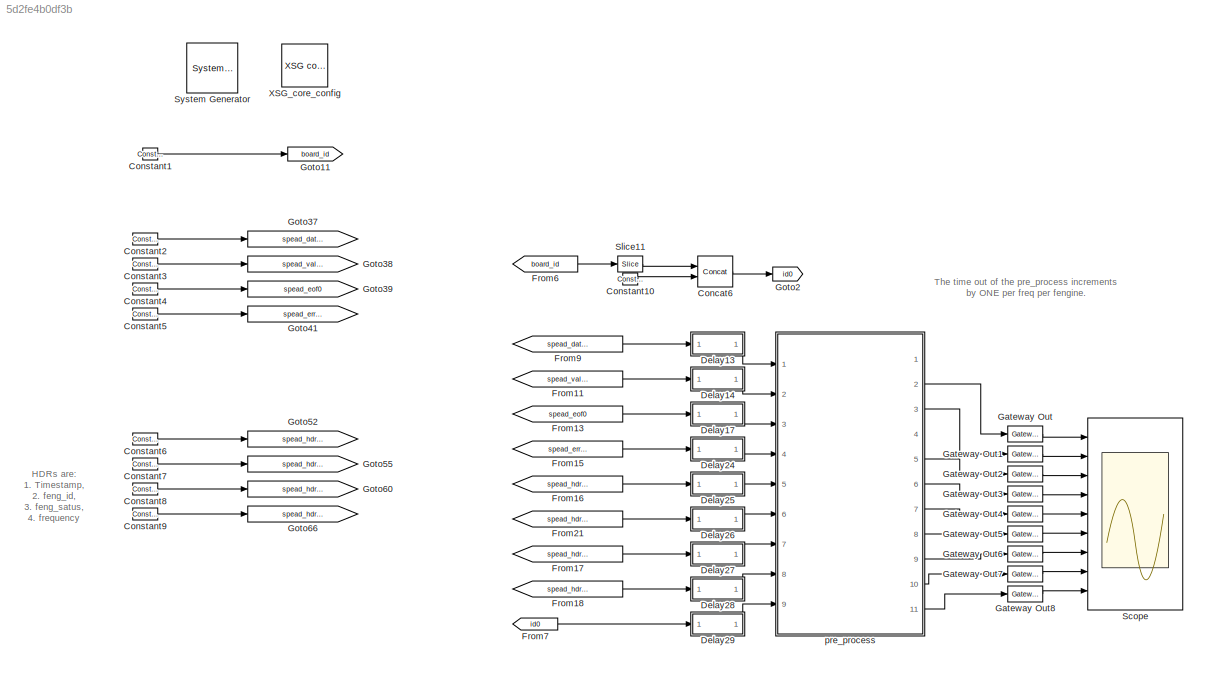
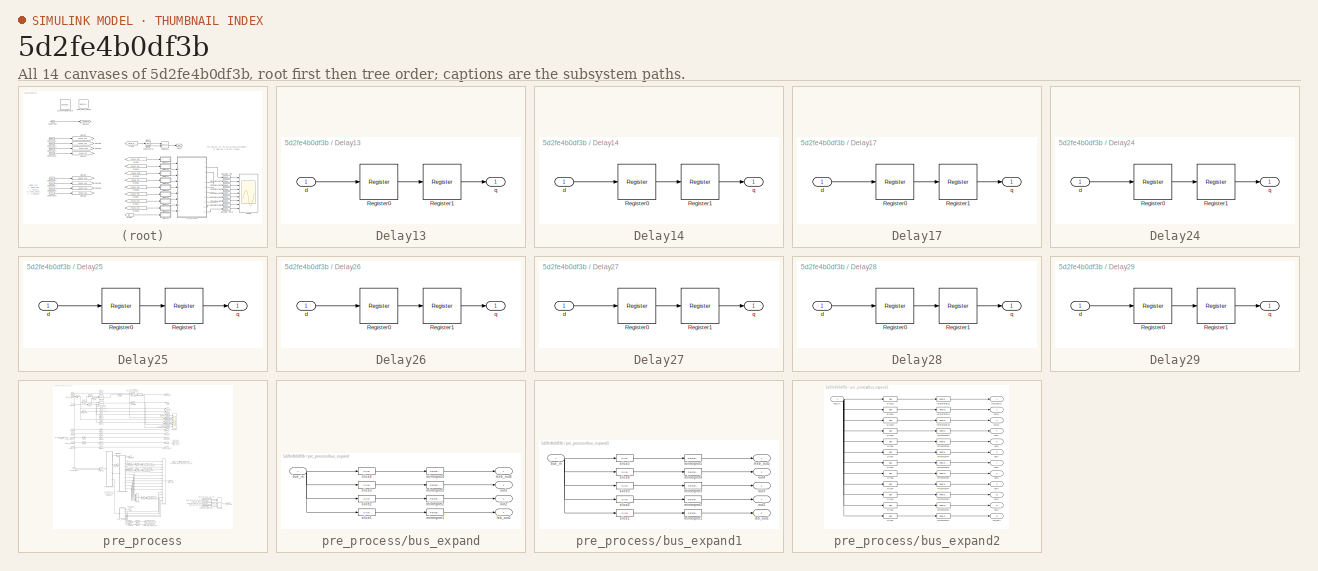
[diagram: thumbnail index - all 14 canvases of the model, root first then tree order]
MODEL slx_5d2fe4b0df3b
KIND model
BLOCK [Reference]  System Generator  REF=xbsIndex_r4/ System Generator
  AttributesFormatString = System\nGenerator
  Impl_file = ISE Defaults
  Ports = []
  SourceBlock = xbsIndex_r4/ System Generator
  SourceType = Xilinx System Generator Block
  Synth_file = XST Defaults
  Tag = genX
  UserDataPersistent = on
  block_type = sysgen
  block_version = 10.1.3
  clock_wrapper = Clock Enables
  core_generation = According to Block Masks
  dbl_ovrd = According to Block Masks
  dcm_input_clock_period = 100
  deprecated_control = off
  directory = ./r2_b16a4x64f/sysgen
  eval_field = 0
  has_advanced_control = 0
  incr_netlist = off
  infoedit = System Generator
  package = ff1759
  part = xc6vsx475t
  proj_type = Project Navigator
  run_coregen = off
  sg_icon_stat = 51,50,0,0,token,white,0,58c5b5770fe5f7c311f53dbc6e73f0f6,right,,[ ],[ ]
  sg_mask_display = fprintf('','COMMENT: begin icon graphics');\npatch([0 51 51 0 0 ],[0 0 50 50 0 ],[1 1 1 ]);\npatch([1.6375 16.81 27.31 37.81 48.31 27.31 12.1375 1.6375 ],[36.655 36.655 47.155 36.655 47.155 47.155 47.155 36.655 ],[0.933333 0.203922 0.141176 ]);\npatch([12.1375 27.31 16.81 1.6375 12.1375 ],[26.155 26.155 36.655 36.655 26.155 ],[0.698039 0.0313725 0.219608 ]);\npatch([1.6375 16.81 27.31 12.1375 1.6375 ]...<+327ch>
  sggui_pos = 326,357,464,470
  simulink_period = 1
  speed = -1
  synthesis_tool = XST
  sysclk_period = 4.4444
  testbench = off
  trim_vbits = Everywhere in SubSystem
  xilinxfamily = virtex6
BLOCK [Reference] Concat6  REF=xbsIndex_r4/Concat
  Ports = [2, 1]
  SourceBlock = xbsIndex_r4/Concat
  SourceType = Xilinx Bus Concatenator Block
  block_type = concat
  dbl_ovrd = off
  has_advanced_control = 0
  infoedit = Concatenates two or more inputs.  Output will be cast to an unsigned value with the binary point at zero.
  num_inputs = 2
  sg_icon_stat = 35,31,2,1,white,blue,0,16398980,right,,[ ],[ ]
  sg_mask_display = fprintf('','COMMENT: begin icon graphics');\npatch([0 35 35 0 0 ],[0 0 31 31 0 ],[0.77 0.82 0.91 ]);\nplot([0 35 35 0 0 ],[0 0 31 31 0 ]);\npatch([8.1 13.88 17.88 21.88 25.88 17.88 12.1 8.1 ],[19.44 19.44 23.44 19.44 23.44 23.44 23.44 19.44 ],[1 1 1 ]);\npatch([12.1 17.88 13.88 8.1 12.1 ],[15.44 15.44 19.44 19.44 15.44 ],[0.931 0.946 0.973 ]);\npatch([8.1 13.88 17.88 12.1 8.1 ],[11.44 11.44 15.44 15.44...<+392ch>
  sggui_pos = -1,-1,-1,-1
BLOCK [Reference] Constant1  REF=xbsIndex_r4/Constant
  Ports = [0, 1]
  SourceBlock = xbsIndex_r4/Constant
  SourceType = Xilinx Constant Block Block
  arith_type = Unsigned
  bin_pt = 0
  block_type = constant
  block_version = 10.1.3
  carry = CIN
  const = 0
  dbl_ovrd = off
  dsp48_infoedit = The use of this block for DSP48 instructions is deprecated.  Please use the Opmode block.
  equ = P=C
  exp_width = 8
  explicit_period = on
  frac_width = 24
  gui_display_data_type = Fixed-point
  has_advanced_control = 0
  inp1 = P
  inp2 = PCIN>>17
  n_bits = 4
  opr = +
  opselect = C
  period = 1
  preci_type = Single
  sg_icon_stat = 15,12,0,1,white,blue,0,bf4ddd8b,right,,[ ],[ ]
  sg_mask_display = fprintf('','COMMENT: begin icon graphics');\npatch([0 15 15 0 0 ],[0 0 12 12 0 ],[0.77 0.82 0.91 ]);\nplot([0 15 15 0 0 ],[0 0 12 12 0 ]);\npatch([4.775 6.22 7.22 8.22 9.22 7.22 5.775 4.775 ],[7.11 7.11 8.11 7.11 8.11 8.11 8.11 7.11 ],[1 1 1 ]);\npatch([5.775 7.22 6.22 4.775 5.775 ],[6.11 6.11 7.11 7.11 6.11 ],[0.931 0.946 0.973 ]);\npatch([4.775 6.22 7.22 5.775 4.775 ],[5.11 5.11 6.11 6.11 5.11 ],[1 1...<+277ch>
  sggui_pos = 838,42,864,586
BLOCK [Reference] Constant10  REF=xbsIndex_r4/Constant
  Ports = [0, 1]
  SourceBlock = xbsIndex_r4/Constant
  SourceType = Xilinx Constant Block Block
  arith_type = Unsigned
  bin_pt = 0
  block_type = constant
  block_version = 10.1.3
  carry = CIN
  const = 1
  dbl_ovrd = off
  dsp48_infoedit = The use of this block for DSP48 instructions is deprecated.  Please use the Opmode block.
  equ = P=C
  exp_width = 8
  explicit_period = on
  frac_width = 24
  gui_display_data_type = Fixed-point
  has_advanced_control = 0
  inp1 = P
  inp2 = PCIN>>17
  n_bits = 2
  opr = +
  opselect = C
  period = 1
  preci_type = Single
  sg_icon_stat = 15,12,0,1,white,blue,0,1c72b5be,right,,[ ],[ ]
  sg_mask_display = fprintf('','COMMENT: begin icon graphics');\npatch([0 15 15 0 0 ],[0 0 12 12 0 ],[0.77 0.82 0.91 ]);\nplot([0 15 15 0 0 ],[0 0 12 12 0 ]);\npatch([4.775 6.22 7.22 8.22 9.22 7.22 5.775 4.775 ],[7.11 7.11 8.11 7.11 8.11 8.11 8.11 7.11 ],[1 1 1 ]);\npatch([5.775 7.22 6.22 4.775 5.775 ],[6.11 6.11 7.11 7.11 6.11 ],[0.931 0.946 0.973 ]);\npatch([4.775 6.22 7.22 5.775 4.775 ],[5.11 5.11 6.11 6.11 5.11 ],[1 1...<+277ch>
  sggui_pos = 701,103,864,586
BLOCK [Reference] Constant2  REF=xbsIndex_r4/Constant
  Ports = [0, 1]
  SourceBlock = xbsIndex_r4/Constant
  SourceType = Xilinx Constant Block Block
  arith_type = Unsigned
  bin_pt = 0
  block_type = constant
  block_version = 10.1.3
  carry = CIN
  const = 0
  dbl_ovrd = off
  dsp48_infoedit = The use of this block for DSP48 instructions is deprecated.  Please use the Opmode block.
  equ = P=C
  exp_width = 8
  explicit_period = on
  frac_width = 24
  gui_display_data_type = Fixed-point
  has_advanced_control = 0
  inp1 = P
  inp2 = PCIN>>17
  n_bits = 64
  opr = +
  opselect = C
  period = 1
  preci_type = Single
  sg_icon_stat = 25,12,0,1,white,blue,0,bf4ddd8b,right,,[ ],[ ]
  sg_mask_display = fprintf('','COMMENT: begin icon graphics');\npatch([0 25 25 0 0 ],[0 0 12 12 0 ],[0.77 0.82 0.91 ]);\nplot([0 25 25 0 0 ],[0 0 12 12 0 ]);\npatch([9.775 11.22 12.22 13.22 14.22 12.22 10.775 9.775 ],[7.11 7.11 8.11 7.11 8.11 8.11 8.11 7.11 ],[1 1 1 ]);\npatch([10.775 12.22 11.22 9.775 10.775 ],[6.11 6.11 7.11 7.11 6.11 ],[0.931 0.946 0.973 ]);\npatch([9.775 11.22 12.22 10.775 9.775 ],[5.11 5.11 6.11 6.1...<+296ch>  <repeated x7 — deduplicated; at blocks: Constant2, Constant3, Constant4, Constant5, Constant6, Constant7, Constant8>
  sggui_pos = 565,413,864,586
BLOCK [Reference] Constant3  REF=xbsIndex_r4/Constant
  Ports = [0, 1]
  SourceBlock = xbsIndex_r4/Constant
  SourceType = Xilinx Constant Block Block
  arith_type = Boolean
  bin_pt = 0
  block_type = constant
  block_version = 10.1.3
  carry = CIN
  const = 1
  dbl_ovrd = off
  dsp48_infoedit = The use of this block for DSP48 instructions is deprecated.  Please use the Opmode block.
  equ = P=C
  exp_width = 8
  explicit_period = on
  frac_width = 24
  gui_display_data_type = Boolean
  has_advanced_control = 0
  inp1 = P
  inp2 = PCIN>>17
  n_bits = 64
  opr = +
  opselect = C
  period = 1
  preci_type = Single
  sg_icon_stat = 25,12,0,1,white,blue,0,1c72b5be,right,,[ ],[ ]
  sggui_pos = 555,403,864,586
BLOCK [Reference] Constant4  REF=xbsIndex_r4/Constant
  Ports = [0, 1]
  SourceBlock = xbsIndex_r4/Constant
  SourceType = Xilinx Constant Block Block
  arith_type = Boolean
  bin_pt = 0
  block_type = constant
  block_version = 10.1.3
  carry = CIN
  const = 0
  dbl_ovrd = off
  dsp48_infoedit = The use of this block for DSP48 instructions is deprecated.  Please use the Opmode block.
  equ = P=C
  exp_width = 8
  explicit_period = on
  frac_width = 24
  gui_display_data_type = Boolean
  has_advanced_control = 0
  inp1 = P
  inp2 = PCIN>>17
  n_bits = 64
  opr = +
  opselect = C
  period = 1
  preci_type = Single
  sg_icon_stat = 25,12,0,1,white,blue,0,bf4ddd8b,right,,[ ],[ ]
  sggui_pos = 545,393,864,586
BLOCK [Reference] Constant5  REF=xbsIndex_r4/Constant
  Ports = [0, 1]
  SourceBlock = xbsIndex_r4/Constant
  SourceType = Xilinx Constant Block Block
  arith_type = Boolean
  bin_pt = 0
  block_type = constant
  block_version = 10.1.3
  carry = CIN
  const = 0
  dbl_ovrd = off
  dsp48_infoedit = The use of this block for DSP48 instructions is deprecated.  Please use the Opmode block.
  equ = P=C
  exp_width = 8
  explicit_period = on
  frac_width = 24
  gui_display_data_type = Boolean
  has_advanced_control = 0
  inp1 = P
  inp2 = PCIN>>17
  n_bits = 64
  opr = +
  opselect = C
  period = 1
  preci_type = Single
  sg_icon_stat = 25,12,0,1,white,blue,0,bf4ddd8b,right,,[ ],[ ]
  sggui_pos = 545,393,864,586
BLOCK [Reference] Constant6  REF=xbsIndex_r4/Constant
  Ports = [0, 1]
  SourceBlock = xbsIndex_r4/Constant
  SourceType = Xilinx Constant Block Block
  arith_type = Unsigned
  bin_pt = 0
  block_type = constant
  block_version = 10.1.3
  carry = CIN
  const = 0
  dbl_ovrd = off
  dsp48_infoedit = The use of this block for DSP48 instructions is deprecated.  Please use the Opmode block.
  equ = P=C
  exp_width = 8
  explicit_period = on
  frac_width = 24
  gui_display_data_type = Fixed-point
  has_advanced_control = 0
  inp1 = P
  inp2 = PCIN>>17
  n_bits = 48
  opr = +
  opselect = C
  period = 1
  preci_type = Single
  sg_icon_stat = 25,12,0,1,white,blue,0,bf4ddd8b,right,,[ ],[ ]
  sggui_pos = 555,403,864,586
BLOCK [Reference] Constant7  REF=xbsIndex_r4/Constant
  Ports = [0, 1]
  SourceBlock = xbsIndex_r4/Constant
  SourceType = Xilinx Constant Block Block
  arith_type = Unsigned
  bin_pt = 0
  block_type = constant
  block_version = 10.1.3
  carry = CIN
  const = 0
  dbl_ovrd = off
  dsp48_infoedit = The use of this block for DSP48 instructions is deprecated.  Please use the Opmode block.
  equ = P=C
  exp_width = 8
  explicit_period = on
  frac_width = 24
  gui_display_data_type = Fixed-point
  has_advanced_control = 0
  inp1 = P
  inp2 = PCIN>>17
  n_bits = 48
  opr = +
  opselect = C
  period = 1
  preci_type = Single
  sg_icon_stat = 25,12,0,1,white,blue,0,bf4ddd8b,right,,[ ],[ ]
  sggui_pos = 555,403,864,586
BLOCK [Reference] Constant8  REF=xbsIndex_r4/Constant
  Ports = [0, 1]
  SourceBlock = xbsIndex_r4/Constant
  SourceType = Xilinx Constant Block Block
  arith_type = Unsigned
  bin_pt = 0
  block_type = constant
  block_version = 10.1.3
  carry = CIN
  const = 0
  dbl_ovrd = off
  dsp48_infoedit = The use of this block for DSP48 instructions is deprecated.  Please use the Opmode block.
  equ = P=C
  exp_width = 8
  explicit_period = on
  frac_width = 24
  gui_display_data_type = Fixed-point
  has_advanced_control = 0
  inp1 = P
  inp2 = PCIN>>17
  n_bits = 48
  opr = +
  opselect = C
  period = 1
  preci_type = Single
  sg_icon_stat = 25,12,0,1,white,blue,0,bf4ddd8b,right,,[ ],[ ]
  sggui_pos = 555,403,864,586
BLOCK [Reference] Constant9  REF=xbsIndex_r4/Constant
  Ports = [0, 1]
  SourceBlock = xbsIndex_r4/Constant
  SourceType = Xilinx Constant Block Block
  arith_type = Unsigned
  bin_pt = 0
  block_type = constant
  block_version = 10.1.3
  carry = CIN
  const = 65
  dbl_ovrd = off
  dsp48_infoedit = The use of this block for DSP48 instructions is deprecated.  Please use the Opmode block.
  equ = P=C
  exp_width = 8
  explicit_period = on
  frac_width = 24
  gui_display_data_type = Fixed-point
  has_advanced_control = 0
  inp1 = P
  inp2 = PCIN>>17
  n_bits = 48
  opr = +
  opselect = C
  period = 1
  preci_type = Single
  sg_icon_stat = 25,12,0,1,white,blue,0,2cfb493b,right,,[ ],[ ]
  sg_mask_display = fprintf('','COMMENT: begin icon graphics');\npatch([0 25 25 0 0 ],[0 0 12 12 0 ],[0.77 0.82 0.91 ]);\nplot([0 25 25 0 0 ],[0 0 12 12 0 ]);\npatch([9.775 11.22 12.22 13.22 14.22 12.22 10.775 9.775 ],[7.11 7.11 8.11 7.11 8.11 8.11 8.11 7.11 ],[1 1 1 ]);\npatch([10.775 12.22 11.22 9.775 10.775 ],[6.11 6.11 7.11 7.11 6.11 ],[0.931 0.946 0.973 ]);\npatch([9.775 11.22 12.22 10.775 9.775 ],[5.11 5.11 6.11 6.1...<+297ch>
  sggui_pos = 545,393,864,586
BLOCK [SubSystem] Delay13
  AncestorBlock = casper_library_delays/pipeline
  AttributesFormatString = Latency = %<latency>
  FunctionWithSeparateData = off
  MaskHideContents = off
  MinAlgLoopOccurrences = off
  Opaque = off
  Ports = [1, 1]
  PropExecContextOutsideSubsystem = off
  RTWSystemCode = Auto
  RequestExecContextInheritance = off
  UserDataPersistent = on
BLOCK [Reference] Delay13/Register0  REF=xbsIndex_r4/Register
  Ports = [1, 1]
  SourceBlock = xbsIndex_r4/Register
  SourceType = Xilinx Register Block
  block_type = register
  block_version = 11.4
  dbl_ovrd = off
  en = off
  has_advanced_control = 0
  init = 0
  rst = off
  sg_icon_stat = 60,56,1,1,white,blue,0,c80657c5,right,,[ ],[ ]
  sg_mask_display = fprintf('','COMMENT: begin icon graphics');\npatch([0 60 60 0 0 ],[0 0 56 56 0 ],[0.77 0.82 0.91 ]);\nplot([0 60 60 0 0 ],[0 0 56 56 0 ]);\npatch([12.2 23.76 31.76 39.76 47.76 31.76 20.2 12.2 ],[36.88 36.88 44.88 36.88 44.88 44.88 44.88 36.88 ],[1 1 1 ]);\npatch([20.2 31.76 23.76 12.2 20.2 ],[28.88 28.88 36.88 36.88 28.88 ],[0.931 0.946 0.973 ]);\npatch([12.2 23.76 31.76 20.2 12.2 ],[20.88 20.88 28.88 ...<+391ch>  <repeated x18 — deduplicated; at blocks: Register0, Register1>
  sggui_pos = -1,-1,-1,-1
  xl_area = [0,0,0,0,0,0,0]
  xl_use_area = off
BLOCK [Reference] Delay13/Register1  REF=xbsIndex_r4/Register
  Ports = [1, 1]
  SourceBlock = xbsIndex_r4/Register
  SourceType = Xilinx Register Block
  block_type = register
  dbl_ovrd = off
  en = off
  has_advanced_control = 0
  init = 0
  rst = off
  sg_icon_stat = 60,56,1,1,white,blue,0,c80657c5,right,,[ ],[ ]
  sggui_pos = -1,-1,-1,-1
  xl_area = [0,0,0,0,0,0,0]
  xl_use_area = off
BLOCK [Inport] Delay13/d
  IconDisplay = Port number
BLOCK [Outport] Delay13/q
  IconDisplay = Port number
BLOCK [SubSystem] Delay14
  AncestorBlock = casper_library_delays/pipeline
  AttributesFormatString = Latency = %<latency>
  FunctionWithSeparateData = off
  MaskHideContents = off
  MinAlgLoopOccurrences = off
  Opaque = off
  Ports = [1, 1]
  PropExecContextOutsideSubsystem = off
  RTWSystemCode = Auto
  RequestExecContextInheritance = off
  UserDataPersistent = on
BLOCK [Reference] Delay14/Register0  REF=xbsIndex_r4/Register
  Ports = [1, 1]
  SourceBlock = xbsIndex_r4/Register
  SourceType = Xilinx Register Block
  block_type = register
  block_version = 11.4
  dbl_ovrd = off
  en = off
  has_advanced_control = 0
  init = 0
  rst = off
  sg_icon_stat = 60,56,1,1,white,blue,0,c80657c5,right,,[ ],[ ]
  sggui_pos = -1,-1,-1,-1
  xl_area = [0,0,0,0,0,0,0]
  xl_use_area = off
BLOCK [Reference] Delay14/Register1  REF=xbsIndex_r4/Register
  Ports = [1, 1]
  SourceBlock = xbsIndex_r4/Register
  SourceType = Xilinx Register Block
  block_type = register
  dbl_ovrd = off
  en = off
  has_advanced_control = 0
  init = 0
  rst = off
  sg_icon_stat = 60,56,1,1,white,blue,0,c80657c5,right,,[ ],[ ]
  sggui_pos = -1,-1,-1,-1
  xl_area = [0,0,0,0,0,0,0]
  xl_use_area = off
BLOCK [Inport] Delay14/d
  IconDisplay = Port number
BLOCK [Outport] Delay14/q
  IconDisplay = Port number
BLOCK [SubSystem] Delay17
  AncestorBlock = casper_library_delays/pipeline
  AttributesFormatString = Latency = %<latency>
  FunctionWithSeparateData = off
  MaskHideContents = off
  MinAlgLoopOccurrences = off
  Opaque = off
  Ports = [1, 1]
  PropExecContextOutsideSubsystem = off
  RTWSystemCode = Auto
  RequestExecContextInheritance = off
  UserDataPersistent = on
BLOCK [Reference] Delay17/Register0  REF=xbsIndex_r4/Register
  Ports = [1, 1]
  SourceBlock = xbsIndex_r4/Register
  SourceType = Xilinx Register Block
  block_type = register
  block_version = 11.4
  dbl_ovrd = off
  en = off
  has_advanced_control = 0
  init = 0
  rst = off
  sg_icon_stat = 60,56,1,1,white,blue,0,c80657c5,right,,[ ],[ ]
  sggui_pos = -1,-1,-1,-1
  xl_area = [0,0,0,0,0,0,0]
  xl_use_area = off
BLOCK [Reference] Delay17/Register1  REF=xbsIndex_r4/Register
  Ports = [1, 1]
  SourceBlock = xbsIndex_r4/Register
  SourceType = Xilinx Register Block
  block_type = register
  dbl_ovrd = off
  en = off
  has_advanced_control = 0
  init = 0
  rst = off
  sg_icon_stat = 60,56,1,1,white,blue,0,c80657c5,right,,[ ],[ ]
  sggui_pos = -1,-1,-1,-1
  xl_area = [0,0,0,0,0,0,0]
  xl_use_area = off
BLOCK [Inport] Delay17/d
  IconDisplay = Port number
BLOCK [Outport] Delay17/q
  IconDisplay = Port number
BLOCK [SubSystem] Delay24
  AncestorBlock = casper_library_delays/pipeline
  AttributesFormatString = Latency = %<latency>
  FunctionWithSeparateData = off
  MaskHideContents = off
  MinAlgLoopOccurrences = off
  Opaque = off
  Ports = [1, 1]
  PropExecContextOutsideSubsystem = off
  RTWSystemCode = Auto
  RequestExecContextInheritance = off
  UserDataPersistent = on
BLOCK [Reference] Delay24/Register0  REF=xbsIndex_r4/Register
  Ports = [1, 1]
  SourceBlock = xbsIndex_r4/Register
  SourceType = Xilinx Register Block
  block_type = register
  block_version = 11.4
  dbl_ovrd = off
  en = off
  has_advanced_control = 0
  init = 0
  rst = off
  sg_icon_stat = 60,56,1,1,white,blue,0,c80657c5,right,,[ ],[ ]
  sggui_pos = -1,-1,-1,-1
  xl_area = [0,0,0,0,0,0,0]
  xl_use_area = off
BLOCK [Reference] Delay24/Register1  REF=xbsIndex_r4/Register
  Ports = [1, 1]
  SourceBlock = xbsIndex_r4/Register
  SourceType = Xilinx Register Block
  block_type = register
  dbl_ovrd = off
  en = off
  has_advanced_control = 0
  init = 0
  rst = off
  sg_icon_stat = 60,56,1,1,white,blue,0,c80657c5,right,,[ ],[ ]
  sggui_pos = -1,-1,-1,-1
  xl_area = [0,0,0,0,0,0,0]
  xl_use_area = off
BLOCK [Inport] Delay24/d
  IconDisplay = Port number
BLOCK [Outport] Delay24/q
  IconDisplay = Port number
BLOCK [SubSystem] Delay25
  AncestorBlock = casper_library_delays/pipeline
  AttributesFormatString = Latency = %<latency>
  FunctionWithSeparateData = off
  MaskHideContents = off
  MinAlgLoopOccurrences = off
  Opaque = off
  Ports = [1, 1]
  PropExecContextOutsideSubsystem = off
  RTWSystemCode = Auto
  RequestExecContextInheritance = off
  UserDataPersistent = on
BLOCK [Reference] Delay25/Register0  REF=xbsIndex_r4/Register
  Ports = [1, 1]
  SourceBlock = xbsIndex_r4/Register
  SourceType = Xilinx Register Block
  block_type = register
  block_version = 11.4
  dbl_ovrd = off
  en = off
  has_advanced_control = 0
  init = 0
  rst = off
  sg_icon_stat = 60,56,1,1,white,blue,0,c80657c5,right,,[ ],[ ]
  sggui_pos = -1,-1,-1,-1
  xl_area = [0,0,0,0,0,0,0]
  xl_use_area = off
BLOCK [Reference] Delay25/Register1  REF=xbsIndex_r4/Register
  Ports = [1, 1]
  SourceBlock = xbsIndex_r4/Register
  SourceType = Xilinx Register Block
  block_type = register
  dbl_ovrd = off
  en = off
  has_advanced_control = 0
  init = 0
  rst = off
  sg_icon_stat = 60,56,1,1,white,blue,0,c80657c5,right,,[ ],[ ]
  sggui_pos = -1,-1,-1,-1
  xl_area = [0,0,0,0,0,0,0]
  xl_use_area = off
BLOCK [Inport] Delay25/d
  IconDisplay = Port number
BLOCK [Outport] Delay25/q
  IconDisplay = Port number
BLOCK [SubSystem] Delay26
  AncestorBlock = casper_library_delays/pipeline
  AttributesFormatString = Latency = %<latency>
  FunctionWithSeparateData = off
  MaskHideContents = off
  MinAlgLoopOccurrences = off
  Opaque = off
  Ports = [1, 1]
  PropExecContextOutsideSubsystem = off
  RTWSystemCode = Auto
  RequestExecContextInheritance = off
  UserDataPersistent = on
BLOCK [Reference] Delay26/Register0  REF=xbsIndex_r4/Register
  Ports = [1, 1]
  SourceBlock = xbsIndex_r4/Register
  SourceType = Xilinx Register Block
  block_type = register
  block_version = 11.4
  dbl_ovrd = off
  en = off
  has_advanced_control = 0
  init = 0
  rst = off
  sg_icon_stat = 60,56,1,1,white,blue,0,c80657c5,right,,[ ],[ ]
  sggui_pos = -1,-1,-1,-1
  xl_area = [0,0,0,0,0,0,0]
  xl_use_area = off
BLOCK [Reference] Delay26/Register1  REF=xbsIndex_r4/Register
  Ports = [1, 1]
  SourceBlock = xbsIndex_r4/Register
  SourceType = Xilinx Register Block
  block_type = register
  dbl_ovrd = off
  en = off
  has_advanced_control = 0
  init = 0
  rst = off
  sg_icon_stat = 60,56,1,1,white,blue,0,c80657c5,right,,[ ],[ ]
  sggui_pos = -1,-1,-1,-1
  xl_area = [0,0,0,0,0,0,0]
  xl_use_area = off
BLOCK [Inport] Delay26/d
  IconDisplay = Port number
BLOCK [Outport] Delay26/q
  IconDisplay = Port number
BLOCK [SubSystem] Delay27
  AncestorBlock = casper_library_delays/pipeline
  AttributesFormatString = Latency = %<latency>
  FunctionWithSeparateData = off
  MaskHideContents = off
  MinAlgLoopOccurrences = off
  Opaque = off
  Ports = [1, 1]
  PropExecContextOutsideSubsystem = off
  RTWSystemCode = Auto
  RequestExecContextInheritance = off
  UserDataPersistent = on
BLOCK [Reference] Delay27/Register0  REF=xbsIndex_r4/Register
  Ports = [1, 1]
  SourceBlock = xbsIndex_r4/Register
  SourceType = Xilinx Register Block
  block_type = register
  block_version = 11.4
  dbl_ovrd = off
  en = off
  has_advanced_control = 0
  init = 0
  rst = off
  sg_icon_stat = 60,56,1,1,white,blue,0,c80657c5,right,,[ ],[ ]
  sggui_pos = -1,-1,-1,-1
  xl_area = [0,0,0,0,0,0,0]
  xl_use_area = off
BLOCK [Reference] Delay27/Register1  REF=xbsIndex_r4/Register
  Ports = [1, 1]
  SourceBlock = xbsIndex_r4/Register
  SourceType = Xilinx Register Block
  block_type = register
  dbl_ovrd = off
  en = off
  has_advanced_control = 0
  init = 0
  rst = off
  sg_icon_stat = 60,56,1,1,white,blue,0,c80657c5,right,,[ ],[ ]
  sggui_pos = -1,-1,-1,-1
  xl_area = [0,0,0,0,0,0,0]
  xl_use_area = off
BLOCK [Inport] Delay27/d
  IconDisplay = Port number
BLOCK [Outport] Delay27/q
  IconDisplay = Port number
BLOCK [SubSystem] Delay28
  AncestorBlock = casper_library_delays/pipeline
  AttributesFormatString = Latency = %<latency>
  FunctionWithSeparateData = off
  MaskHideContents = off
  MinAlgLoopOccurrences = off
  Opaque = off
  Ports = [1, 1]
  PropExecContextOutsideSubsystem = off
  RTWSystemCode = Auto
  RequestExecContextInheritance = off
  UserDataPersistent = on
BLOCK [Reference] Delay28/Register0  REF=xbsIndex_r4/Register
  Ports = [1, 1]
  SourceBlock = xbsIndex_r4/Register
  SourceType = Xilinx Register Block
  block_type = register
  block_version = 11.4
  dbl_ovrd = off
  en = off
  has_advanced_control = 0
  init = 0
  rst = off
  sg_icon_stat = 60,56,1,1,white,blue,0,c80657c5,right,,[ ],[ ]
  sggui_pos = -1,-1,-1,-1
  xl_area = [0,0,0,0,0,0,0]
  xl_use_area = off
BLOCK [Reference] Delay28/Register1  REF=xbsIndex_r4/Register
  Ports = [1, 1]
  SourceBlock = xbsIndex_r4/Register
  SourceType = Xilinx Register Block
  block_type = register
  dbl_ovrd = off
  en = off
  has_advanced_control = 0
  init = 0
  rst = off
  sg_icon_stat = 60,56,1,1,white,blue,0,c80657c5,right,,[ ],[ ]
  sggui_pos = -1,-1,-1,-1
  xl_area = [0,0,0,0,0,0,0]
  xl_use_area = off
BLOCK [Inport] Delay28/d
  IconDisplay = Port number
BLOCK [Outport] Delay28/q
  IconDisplay = Port number
BLOCK [SubSystem] Delay29
  AncestorBlock = casper_library_delays/pipeline
  AttributesFormatString = Latency = %<latency>
  FunctionWithSeparateData = off
  MaskHideContents = off
  MinAlgLoopOccurrences = off
  Opaque = off
  Ports = [1, 1]
  PropExecContextOutsideSubsystem = off
  RTWSystemCode = Auto
  RequestExecContextInheritance = off
  UserDataPersistent = on
BLOCK [Reference] Delay29/Register0  REF=xbsIndex_r4/Register
  Ports = [1, 1]
  SourceBlock = xbsIndex_r4/Register
  SourceType = Xilinx Register Block
  block_type = register
  block_version = 11.4
  dbl_ovrd = off
  en = off
  has_advanced_control = 0
  init = 0
  rst = off
  sg_icon_stat = 60,56,1,1,white,blue,0,c80657c5,right,,[ ],[ ]
  sggui_pos = -1,-1,-1,-1
  xl_area = [0,0,0,0,0,0,0]
  xl_use_area = off
BLOCK [Reference] Delay29/Register1  REF=xbsIndex_r4/Register
  Ports = [1, 1]
  SourceBlock = xbsIndex_r4/Register
  SourceType = Xilinx Register Block
  block_type = register
  dbl_ovrd = off
  en = off
  has_advanced_control = 0
  init = 0
  rst = off
  sg_icon_stat = 60,56,1,1,white,blue,0,c80657c5,right,,[ ],[ ]
  sggui_pos = -1,-1,-1,-1
  xl_area = [0,0,0,0,0,0,0]
  xl_use_area = off
BLOCK [Inport] Delay29/d
  IconDisplay = Port number
BLOCK [Outport] Delay29/q
  IconDisplay = Port number
BLOCK [From] From11
  CloseFcn = tagdialog Close
  GotoTag = spead_valid0
  TagVisibility = global
BLOCK [From] From13
  CloseFcn = tagdialog Close
  GotoTag = spead_eof0
  TagVisibility = global
BLOCK [From] From15
  CloseFcn = tagdialog Close
  GotoTag = spead_error0
  TagVisibility = global
BLOCK [From] From16
  CloseFcn = tagdialog Close
  GotoTag = spead_hdr1_0
  TagVisibility = global
BLOCK [From] From17
  CloseFcn = tagdialog Close
  GotoTag = spead_hdr3_0
  TagVisibility = global
BLOCK [From] From18
  CloseFcn = tagdialog Close
  GotoTag = spead_hdr4_0
  TagVisibility = global
BLOCK [From] From21
  CloseFcn = tagdialog Close
  GotoTag = spead_hdr2_0
  TagVisibility = global
BLOCK [From] From6
  CloseFcn = tagdialog Close
  GotoTag = board_id
  TagVisibility = global
BLOCK [From] From7
  CloseFcn = tagdialog Close
  GotoTag = id0
  TagVisibility = global
BLOCK [From] From9
  CloseFcn = tagdialog Close
  GotoTag = spead_data0
  TagVisibility = global
BLOCK [Reference] Gateway Out  REF=xbsIndex_r4/Gateway Out
  DACChannel = '1'
  LOCs = {}
  Ports = [1, 1]
  SourceBlock = xbsIndex_r4/Gateway Out
  SourceType = Xilinx Gateway Out Block
  UseAsDAC = off
  block_type = gatewayout
  has_advanced_control = 0
  hdl_port = on
  infoedit = Gateway out block.  Converts Xilinx fixed-point or floating-point type inputs into ouputs of type Simulink integer, single, double, or fixed-point.<br><br>Hardware notes:  In hardware these blocks become top level output ports or are discarded, depending on how they are configured.  <repeated x9 — deduplicated; at blocks: Gateway Out, Gateway Out1, Gateway Out2, Gateway Out3, Gateway Out4, Gateway Out5, Gateway Out6, Gateway Out7, Gateway Out8>
  inherit_from_input = off
  locs_specified = off
  sg_icon_stat = 35,16,1,1,white,yellow,1,cc31b7ac,right,,[ ],[ ]
  sg_mask_display = fprintf('','COMMENT: begin icon graphics');\npatch([0 35 35 0 0 ],[0 0 16 16 0 ],[0.95 0.93 0.65 ]);\nplot([0 35 35 0 0 ],[0 0 16 16 0 ]);\npatch([12.55 15.44 17.44 19.44 21.44 17.44 14.55 12.55 ],[10.22 10.22 12.22 10.22 12.22 12.22 12.22 10.22 ],[1 1 1 ]);\npatch([14.55 17.44 15.44 12.55 14.55 ],[8.22 8.22 10.22 10.22 8.22 ],[0.985 0.979 0.895 ]);\npatch([12.55 15.44 17.44 14.55 12.55 ],[6.22 6.22 8....<+379ch>  <repeated x9 — deduplicated; at blocks: Gateway Out, Gateway Out1, Gateway Out2, Gateway Out3, Gateway Out4, Gateway Out5, Gateway Out6, Gateway Out7, Gateway Out8>
  sggui_pos = -1,-1,-1,-1
  timing_constraint = None
  xl_area = [0,0,0,0,0,0,0]
  xl_use_area = off
BLOCK [Reference] Gateway Out1  REF=xbsIndex_r4/Gateway Out
  DACChannel = '1'
  LOCs = {}
  Ports = [1, 1]
  SourceBlock = xbsIndex_r4/Gateway Out
  SourceType = Xilinx Gateway Out Block
  UseAsDAC = off
  block_type = gatewayout
  has_advanced_control = 0
  hdl_port = on
  inherit_from_input = off
  locs_specified = off
  sg_icon_stat = 35,16,1,1,white,yellow,1,cc31b7ac,right,,[ ],[ ]
  sggui_pos = -1,-1,-1,-1
  timing_constraint = None
  xl_area = [0,0,0,0,0,0,0]
  xl_use_area = off
BLOCK [Reference] Gateway Out2  REF=xbsIndex_r4/Gateway Out
  DACChannel = '1'
  LOCs = {}
  Ports = [1, 1]
  SourceBlock = xbsIndex_r4/Gateway Out
  SourceType = Xilinx Gateway Out Block
  UseAsDAC = off
  block_type = gatewayout
  has_advanced_control = 0
  hdl_port = on
  inherit_from_input = off
  locs_specified = off
  sg_icon_stat = 35,16,1,1,white,yellow,1,cc31b7ac,right,,[ ],[ ]
  sggui_pos = -1,-1,-1,-1
  timing_constraint = None
  xl_area = [0,0,0,0,0,0,0]
  xl_use_area = off
BLOCK [Reference] Gateway Out3  REF=xbsIndex_r4/Gateway Out
  DACChannel = '1'
  LOCs = {}
  Ports = [1, 1]
  SourceBlock = xbsIndex_r4/Gateway Out
  SourceType = Xilinx Gateway Out Block
  UseAsDAC = off
  block_type = gatewayout
  has_advanced_control = 0
  hdl_port = on
  inherit_from_input = off
  locs_specified = off
  sg_icon_stat = 35,16,1,1,white,yellow,1,cc31b7ac,right,,[ ],[ ]
  sggui_pos = -1,-1,-1,-1
  timing_constraint = None
  xl_area = [0,0,0,0,0,0,0]
  xl_use_area = off
BLOCK [Reference] Gateway Out4  REF=xbsIndex_r4/Gateway Out
  DACChannel = '1'
  LOCs = {}
  Ports = [1, 1]
  SourceBlock = xbsIndex_r4/Gateway Out
  SourceType = Xilinx Gateway Out Block
  UseAsDAC = off
  block_type = gatewayout
  has_advanced_control = 0
  hdl_port = on
  inherit_from_input = off
  locs_specified = off
  sg_icon_stat = 35,16,1,1,white,yellow,1,cc31b7ac,right,,[ ],[ ]
  sggui_pos = -1,-1,-1,-1
  timing_constraint = None
  xl_area = [0,0,0,0,0,0,0]
  xl_use_area = off
BLOCK [Reference] Gateway Out5  REF=xbsIndex_r4/Gateway Out
  DACChannel = '1'
  LOCs = {}
  Ports = [1, 1]
  SourceBlock = xbsIndex_r4/Gateway Out
  SourceType = Xilinx Gateway Out Block
  UseAsDAC = off
  block_type = gatewayout
  has_advanced_control = 0
  hdl_port = on
  inherit_from_input = off
  locs_specified = off
  sg_icon_stat = 35,16,1,1,white,yellow,1,cc31b7ac,right,,[ ],[ ]
  sggui_pos = -1,-1,-1,-1
  timing_constraint = None
  xl_area = [0,0,0,0,0,0,0]
  xl_use_area = off
BLOCK [Reference] Gateway Out6  REF=xbsIndex_r4/Gateway Out
  DACChannel = '1'
  LOCs = {}
  Ports = [1, 1]
  SourceBlock = xbsIndex_r4/Gateway Out
  SourceType = Xilinx Gateway Out Block
  UseAsDAC = off
  block_type = gatewayout
  has_advanced_control = 0
  hdl_port = on
  inherit_from_input = off
  locs_specified = off
  sg_icon_stat = 35,16,1,1,white,yellow,1,cc31b7ac,right,,[ ],[ ]
  sggui_pos = -1,-1,-1,-1
  timing_constraint = None
  xl_area = [0,0,0,0,0,0,0]
  xl_use_area = off
BLOCK [Reference] Gateway Out7  REF=xbsIndex_r4/Gateway Out
  DACChannel = '1'
  LOCs = {}
  Ports = [1, 1]
  SourceBlock = xbsIndex_r4/Gateway Out
  SourceType = Xilinx Gateway Out Block
  UseAsDAC = off
  block_type = gatewayout
  has_advanced_control = 0
  hdl_port = on
  inherit_from_input = off
  locs_specified = off
  sg_icon_stat = 35,16,1,1,white,yellow,1,cc31b7ac,right,,[ ],[ ]
  sggui_pos = -1,-1,-1,-1
  timing_constraint = None
  xl_area = [0,0,0,0,0,0,0]
  xl_use_area = off
BLOCK [Reference] Gateway Out8  REF=xbsIndex_r4/Gateway Out
  DACChannel = '1'
  LOCs = {}
  Ports = [1, 1]
  SourceBlock = xbsIndex_r4/Gateway Out
  SourceType = Xilinx Gateway Out Block
  UseAsDAC = off
  block_type = gatewayout
  has_advanced_control = 0
  hdl_port = on
  inherit_from_input = off
  locs_specified = off
  sg_icon_stat = 35,16,1,1,white,yellow,1,cc31b7ac,right,,[ ],[ ]
  sggui_pos = -1,-1,-1,-1
  timing_constraint = None
  xl_area = [0,0,0,0,0,0,0]
  xl_use_area = off
BLOCK [Goto] Goto11
  GotoTag = board_id
  TagVisibility = global
BLOCK [Goto] Goto2
  GotoTag = id0
  TagVisibility = global
BLOCK [Goto] Goto37
  GotoTag = spead_data0
  TagVisibility = global
BLOCK [Goto] Goto38
  GotoTag = spead_valid0
  TagVisibility = global
BLOCK [Goto] Goto39
  GotoTag = spead_eof0
  TagVisibility = global
BLOCK [Goto] Goto41
  GotoTag = spead_error0
  TagVisibility = global
BLOCK [Goto] Goto52
  GotoTag = spead_hdr1_0
  TagVisibility = global
BLOCK [Goto] Goto55
  GotoTag = spead_hdr2_0
  TagVisibility = global
BLOCK [Goto] Goto60
  GotoTag = spead_hdr3_0
  TagVisibility = global
BLOCK [Goto] Goto66
  GotoTag = spead_hdr4_0
  TagVisibility = global
BLOCK [Scope] Scope
  DataFormat = StructureWithTime
  Floating = off
  LimitDataPoints = off
  NumInputPorts = 9
  Ports = [9]
  SampleTime = 0
  ShowLegends = off
  YMax = 5~5~5~5~5~5~5~5~5
  YMin = -5~-5~-5~-5~-5~-5~-5~-5~-5
  ZoomMode = xonly
BLOCK [Reference] Slice11  REF=xbsIndex_r4/Slice
  Ports = [1, 1]
  SourceBlock = xbsIndex_r4/Slice
  SourceType = Xilinx Bit Slice Extractor Block
  base0 = LSB of Input
  base1 = MSB of Input
  bit0 = 0
  bit1 = 0
  block_type = slice
  block_version = 10.1.3
  boolean_output = off
  dbl_ovrd = off
  has_advanced_control = 0
  infoedit = Extracts a given range of bits from each input sample and presents it at the output.  The output type is ordinarily unsigned with binary point at zero, but can be Boolean when the slice is one bit wide.<br><br>Hardware notes: In hardware this block costs nothing.  <repeated x35 — deduplicated; at blocks: Slice11, Slice, Slice1, Slice4, Slice5, Slice6, Slice7, Slice9, slice1, slice2, slice3, slice4, slice5, slice10, slice11, slice12, +10 more>
  mode = Lower Bit Location + Width
  nbits = 6 - 2
  sg_icon_stat = 25,16,1,1,white,blue,0,1fd851a7,right,,[ ],[ ]
  sg_mask_display = fprintf('','COMMENT: begin icon graphics');\npatch([0 25 25 0 0 ],[0 0 16 16 0 ],[0.77 0.82 0.91 ]);\nplot([0 25 25 0 0 ],[0 0 16 16 0 ]);\npatch([7.55 10.44 12.44 14.44 16.44 12.44 9.55 7.55 ],[10.22 10.22 12.22 10.22 12.22 12.22 12.22 10.22 ],[1 1 1 ]);\npatch([9.55 12.44 10.44 7.55 9.55 ],[8.22 8.22 10.22 10.22 8.22 ],[0.931 0.946 0.973 ]);\npatch([7.55 10.44 12.44 9.55 7.55 ],[6.22 6.22 8.22 8.22 6...<+293ch>
  sggui_pos = 717,256,601,558
BLOCK [Reference] XSG_core_config  REF=xps_library/XSG core config  (lib defined in mdl_00b5cec29cd0, mdl_02ab6ecaa3d1, +5 more)
  MKDIG_clk_src = sys_clk
  Ports = []
  ROACH2_clk_src = sys_clk
  ROACH_clk_src = sys_clk
  SourceBlock = xps_library/XSG core config
  SourceType = xsg core config
  Tag = xps:xsg
  clk_rate = 225
  clk_src = sys_clk
  hw_sys = ROACH2:sx475t
  sample_period = 1
  synthesis_tool = XST
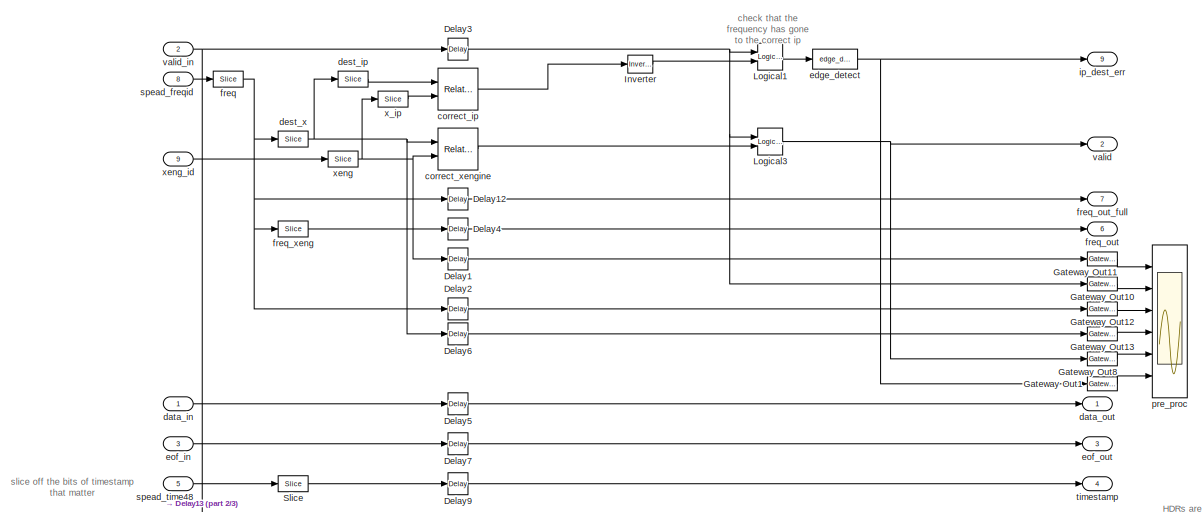
[diagram: pre_process - part 1/3, top center region]
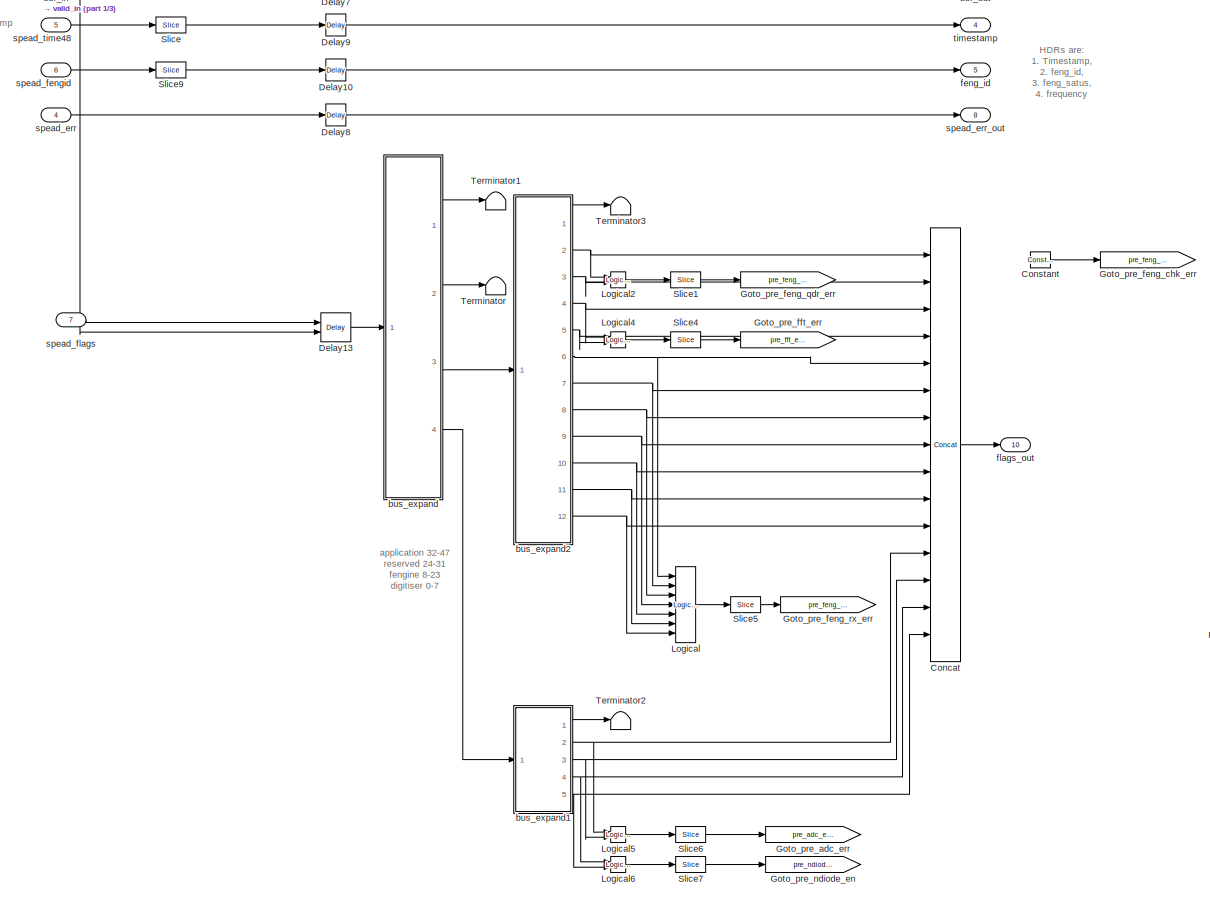
[diagram: pre_process - part 2/3, bottom center region]
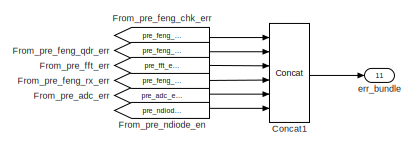
[diagram: pre_process - part 3/3, bottom right region]
BLOCK [SubSystem] pre_process
  FunctionWithSeparateData = off
  MaskHideContents = off
  MinAlgLoopOccurrences = off
  Opaque = off
  Ports = [9, 11]
  PropExecContextOutsideSubsystem = off
  RTWSystemCode = Auto
  RequestExecContextInheritance = off
BLOCK [Reference] pre_process/Concat  REF=xbsIndex_r4/Concat
  Ports = [15, 1]
  SourceBlock = xbsIndex_r4/Concat
  SourceType = Xilinx Bus Concatenator Block
  block_type = concat
  dbl_ovrd = off
  has_advanced_control = 0
  infoedit = Concatenates two or more inputs.  Output will be cast to an unsigned value with the binary point at zero.
  num_inputs = 15
  sg_icon_stat = 30,434,15,1,white,blue,0,6355a58e,right,,[ ],[ ]
  sg_mask_display = fprintf('','COMMENT: begin icon graphics');\npatch([0 30 30 0 0 ],[0 0 434 434 0 ],[0.77 0.82 0.91 ]);\nplot([0 30 30 0 0 ],[0 0 434 434 0 ]);\npatch([6.1 11.88 15.88 19.88 23.88 15.88 10.1 6.1 ],[221.44 221.44 225.44 221.44 225.44 225.44 225.44 221.44 ],[1 1 1 ]);\npatch([10.1 15.88 11.88 6.1 10.1 ],[217.44 217.44 221.44 221.44 217.44 ],[0.931 0.946 0.973 ]);\npatch([6.1 11.88 15.88 10.1 6.1 ],[213.44...<+439ch>
  sggui_pos = -7,24,348,208
BLOCK [Reference] pre_process/Concat1  REF=xbsIndex_r4/Concat
  Ports = [6, 1]
  SourceBlock = xbsIndex_r4/Concat
  SourceType = Xilinx Bus Concatenator Block
  block_type = concat
  dbl_ovrd = off
  has_advanced_control = 0
  infoedit = Concatenates two or more inputs.  Output will be cast to an unsigned value with the binary point at zero.
  num_inputs = 6
  sg_icon_stat = 40,99,6,1,white,blue,0,c44eeefa,right,,[ ],[ ]
  sg_mask_display = fprintf('','COMMENT: begin icon graphics');\npatch([0 40 40 0 0 ],[0 0 99 99 0 ],[0.77 0.82 0.91 ]);\nplot([0 40 40 0 0 ],[0 0 99 99 0 ]);\npatch([8.875 16.1 21.1 26.1 31.1 21.1 13.875 8.875 ],[54.55 54.55 59.55 54.55 59.55 59.55 59.55 54.55 ],[1 1 1 ]);\npatch([13.875 21.1 16.1 8.875 13.875 ],[49.55 49.55 54.55 54.55 49.55 ],[0.931 0.946 0.973 ]);\npatch([8.875 16.1 21.1 13.875 8.875 ],[44.55 44.55 49...<+411ch>
  sggui_pos = 0,25,348,208
BLOCK [Reference] pre_process/Constant  REF=xbsIndex_r4/Constant
  Ports = [0, 1]
  SourceBlock = xbsIndex_r4/Constant
  SourceType = Xilinx Constant Block Block
  arith_type = Boolean
  bin_pt = 0
  block_type = constant
  carry = CIN
  const = 0
  dbl_ovrd = off
  dsp48_infoedit = The use of this block for DSP48 instructions is deprecated.  Please use the Opmode block.
  equ = P=C
  exp_width = 8
  explicit_period = on
  frac_width = 24
  gui_display_data_type = Boolean
  has_advanced_control = 0
  inp1 = P
  inp2 = PCIN>>17
  n_bits = 1
  opr = +
  opselect = C
  period = 1
  preci_type = Single
  sg_icon_stat = 20,16,0,1,white,blue,0,bf4ddd8b,right,,[ ],[ ]
  sg_mask_display = fprintf('','COMMENT: begin icon graphics');\npatch([0 20 20 0 0 ],[0 0 16 16 0 ],[0.77 0.82 0.91 ]);\nplot([0 20 20 0 0 ],[0 0 16 16 0 ]);\npatch([5.55 8.44 10.44 12.44 14.44 10.44 7.55 5.55 ],[10.22 10.22 12.22 10.22 12.22 12.22 12.22 10.22 ],[1 1 1 ]);\npatch([7.55 10.44 8.44 5.55 7.55 ],[8.22 8.22 10.22 10.22 8.22 ],[0.931 0.946 0.973 ]);\npatch([5.55 8.44 10.44 7.55 5.55 ],[6.22 6.22 8.22 8.22 6.22...<+284ch>
  sggui_pos = 2,32,348,463
BLOCK [Reference] pre_process/Delay1  REF=xbsIndex_r4/Delay
  Ports = [1, 1]
  SourceBlock = xbsIndex_r4/Delay
  SourceType = Xilinx Delay Block
  block_type = delay
  block_version = 10.1.3
  dbl_ovrd = off
  en = off
  has_advanced_control = 0
  infoedit = Hardware notes: A delay line is a chain, each link of which is an SRL16 followed by a flip-flop.
  infoeditControl = Selection of Reset will increase slice count due to use of real FFs and instead of SRLs
  latency = 1
  reg_retiming = on
  rst = off
  sg_icon_stat = 20,22,1,1,white,blue,0,07b98262,right,,[ ],[ ]
  sg_mask_display = fprintf('','COMMENT: begin icon graphics');\npatch([0 20 20 0 0 ],[0 0 22 22 0 ],[0.77 0.82 0.91 ]);\nplot([0 20 20 0 0 ],[0 0 22 22 0 ]);\npatch([5.55 8.44 10.44 12.44 14.44 10.44 7.55 5.55 ],[13.22 13.22 15.22 13.22 15.22 15.22 15.22 13.22 ],[1 1 1 ]);\npatch([7.55 10.44 8.44 5.55 7.55 ],[11.22 11.22 13.22 13.22 11.22 ],[0.931 0.946 0.973 ]);\npatch([5.55 8.44 10.44 7.55 5.55 ],[9.22 9.22 11.22 11.22...<+294ch>  <repeated x11 — deduplicated; at blocks: Delay1, Delay10, Delay12, Delay2, Delay3, Delay4, Delay5, Delay6, Delay7, Delay8, Delay9>
  sggui_pos = -1,-1,-1,-1
  xl_area = [0, 0, 0, 0, 0, 0, 0]
  xl_use_area = off
BLOCK [Reference] pre_process/Delay10  REF=xbsIndex_r4/Delay
  Ports = [1, 1]
  SourceBlock = xbsIndex_r4/Delay
  SourceType = Xilinx Delay Block
  block_type = delay
  block_version = 10.1.3
  dbl_ovrd = off
  en = off
  has_advanced_control = 0
  infoedit = Hardware notes: A delay line is a chain, each link of which is an SRL16 followed by a flip-flop.
  infoeditControl = Selection of Reset will increase slice count due to use of real FFs and instead of SRLs
  latency = 1
  reg_retiming = on
  rst = off
  sg_icon_stat = 20,22,1,1,white,blue,0,07b98262,right,,[ ],[ ]
  sggui_pos = -1,-1,-1,-1
  xl_area = [0, 0, 0, 0, 0, 0, 0]
  xl_use_area = off
BLOCK [Reference] pre_process/Delay12  REF=xbsIndex_r4/Delay
  Ports = [1, 1]
  SourceBlock = xbsIndex_r4/Delay
  SourceType = Xilinx Delay Block
  block_type = delay
  block_version = 10.1.3
  dbl_ovrd = off
  en = off
  has_advanced_control = 0
  infoedit = Hardware notes: A delay line is a chain, each link of which is an SRL16 followed by a flip-flop.
  infoeditControl = Selection of Reset will increase slice count due to use of real FFs and instead of SRLs
  latency = 1
  reg_retiming = on
  rst = off
  sg_icon_stat = 20,22,1,1,white,blue,0,07b98262,right,,[ ],[ ]
  sggui_pos = -1,-1,-1,-1
  xl_area = [0, 0, 0, 0, 0, 0, 0]
  xl_use_area = off
BLOCK [Reference] pre_process/Delay13  REF=xbsIndex_r4/Delay
  Ports = [2, 1]
  SourceBlock = xbsIndex_r4/Delay
  SourceType = Xilinx Delay Block
  block_type = delay
  block_version = 10.1.3
  dbl_ovrd = off
  en = on
  has_advanced_control = 0
  infoedit = Hardware notes: A delay line is a chain, each link of which is an SRL16 followed by a flip-flop.
  infoeditControl = Selection of Reset will increase slice count due to use of real FFs and instead of SRLs
  latency = 1
  reg_retiming = on
  rst = off
  sg_icon_stat = 30,29,2,1,white,blue,0,7c0ac154,right,,[ ],[ ]
  sg_mask_display = fprintf('','COMMENT: begin icon graphics');\npatch([0 30 30 0 0 ],[0 0 29 29 0 ],[0.77 0.82 0.91 ]);\nplot([0 30 30 0 0 ],[0 0 29 29 0 ]);\npatch([6.1 11.88 15.88 19.88 23.88 15.88 10.1 6.1 ],[18.44 18.44 22.44 18.44 22.44 22.44 22.44 18.44 ],[1 1 1 ]);\npatch([10.1 15.88 11.88 6.1 10.1 ],[14.44 14.44 18.44 18.44 14.44 ],[0.931 0.946 0.973 ]);\npatch([6.1 11.88 15.88 10.1 6.1 ],[10.44 10.44 14.44 14.44...<+341ch>
  sggui_pos = 2,32,464,439
  xl_area = [0, 0, 0, 0, 0, 0, 0]
  xl_use_area = off
BLOCK [Reference] pre_process/Delay2  REF=xbsIndex_r4/Delay
  Ports = [1, 1]
  SourceBlock = xbsIndex_r4/Delay
  SourceType = Xilinx Delay Block
  block_type = delay
  block_version = 10.1.3
  dbl_ovrd = off
  en = off
  has_advanced_control = 0
  infoedit = Hardware notes: A delay line is a chain, each link of which is an SRL16 followed by a flip-flop.
  infoeditControl = Selection of Reset will increase slice count due to use of real FFs and instead of SRLs
  latency = 1
  reg_retiming = on
  rst = off
  sg_icon_stat = 20,22,1,1,white,blue,0,07b98262,right,,[ ],[ ]
  sggui_pos = -1,-1,-1,-1
  xl_area = [0, 0, 0, 0, 0, 0, 0]
  xl_use_area = off
BLOCK [Reference] pre_process/Delay3  REF=xbsIndex_r4/Delay
  Ports = [1, 1]
  SourceBlock = xbsIndex_r4/Delay
  SourceType = Xilinx Delay Block
  block_type = delay
  block_version = 10.1.3
  dbl_ovrd = off
  en = off
  has_advanced_control = 0
  infoedit = Hardware notes: A delay line is a chain, each link of which is an SRL16 followed by a flip-flop.
  infoeditControl = Selection of Reset will increase slice count due to use of real FFs and instead of SRLs
  latency = 1
  reg_retiming = on
  rst = off
  sg_icon_stat = 20,22,1,1,white,blue,0,07b98262,right,,[ ],[ ]
  sggui_pos = -1,-1,-1,-1
  xl_area = [0, 0, 0, 0, 0, 0, 0]
  xl_use_area = off
BLOCK [Reference] pre_process/Delay4  REF=xbsIndex_r4/Delay
  Ports = [1, 1]
  SourceBlock = xbsIndex_r4/Delay
  SourceType = Xilinx Delay Block
  block_type = delay
  block_version = 10.1.3
  dbl_ovrd = off
  en = off
  has_advanced_control = 0
  infoedit = Hardware notes: A delay line is a chain, each link of which is an SRL16 followed by a flip-flop.
  infoeditControl = Selection of Reset will increase slice count due to use of real FFs and instead of SRLs
  latency = 1
  reg_retiming = on
  rst = off
  sg_icon_stat = 20,22,1,1,white,blue,0,07b98262,right,,[ ],[ ]
  sggui_pos = -1,-1,-1,-1
  xl_area = [0, 0, 0, 0, 0, 0, 0]
  xl_use_area = off
BLOCK [Reference] pre_process/Delay5  REF=xbsIndex_r4/Delay
  Ports = [1, 1]
  SourceBlock = xbsIndex_r4/Delay
  SourceType = Xilinx Delay Block
  block_type = delay
  block_version = 10.1.3
  dbl_ovrd = off
  en = off
  has_advanced_control = 0
  infoedit = Hardware notes: A delay line is a chain, each link of which is an SRL16 followed by a flip-flop.
  infoeditControl = Selection of Reset will increase slice count due to use of real FFs and instead of SRLs
  latency = 1
  reg_retiming = on
  rst = off
  sg_icon_stat = 20,22,1,1,white,blue,0,07b98262,right,,[ ],[ ]
  sggui_pos = -1,-1,-1,-1
  xl_area = [0, 0, 0, 0, 0, 0, 0]
  xl_use_area = off
BLOCK [Reference] pre_process/Delay6  REF=xbsIndex_r4/Delay
  Ports = [1, 1]
  SourceBlock = xbsIndex_r4/Delay
  SourceType = Xilinx Delay Block
  block_type = delay
  block_version = 10.1.3
  dbl_ovrd = off
  en = off
  has_advanced_control = 0
  infoedit = Hardware notes: A delay line is a chain, each link of which is an SRL16 followed by a flip-flop.
  infoeditControl = Selection of Reset will increase slice count due to use of real FFs and instead of SRLs
  latency = 1
  reg_retiming = on
  rst = off
  sg_icon_stat = 20,22,1,1,white,blue,0,07b98262,right,,[ ],[ ]
  sggui_pos = -1,-1,-1,-1
  xl_area = [0, 0, 0, 0, 0, 0, 0]
  xl_use_area = off
BLOCK [Reference] pre_process/Delay7  REF=xbsIndex_r4/Delay
  Ports = [1, 1]
  SourceBlock = xbsIndex_r4/Delay
  SourceType = Xilinx Delay Block
  block_type = delay
  block_version = 10.1.3
  dbl_ovrd = off
  en = off
  has_advanced_control = 0
  infoedit = Hardware notes: A delay line is a chain, each link of which is an SRL16 followed by a flip-flop.
  infoeditControl = Selection of Reset will increase slice count due to use of real FFs and instead of SRLs
  latency = 1
  reg_retiming = on
  rst = off
  sg_icon_stat = 20,22,1,1,white,blue,0,07b98262,right,,[ ],[ ]
  sggui_pos = -1,-1,-1,-1
  xl_area = [0, 0, 0, 0, 0, 0, 0]
  xl_use_area = off
BLOCK [Reference] pre_process/Delay8  REF=xbsIndex_r4/Delay
  Ports = [1, 1]
  SourceBlock = xbsIndex_r4/Delay
  SourceType = Xilinx Delay Block
  block_type = delay
  block_version = 10.1.3
  dbl_ovrd = off
  en = off
  has_advanced_control = 0
  infoedit = Hardware notes: A delay line is a chain, each link of which is an SRL16 followed by a flip-flop.
  infoeditControl = Selection of Reset will increase slice count due to use of real FFs and instead of SRLs
  latency = 1
  reg_retiming = on
  rst = off
  sg_icon_stat = 20,22,1,1,white,blue,0,07b98262,right,,[ ],[ ]
  sggui_pos = -1,-1,-1,-1
  xl_area = [0, 0, 0, 0, 0, 0, 0]
  xl_use_area = off
BLOCK [Reference] pre_process/Delay9  REF=xbsIndex_r4/Delay
  Ports = [1, 1]
  SourceBlock = xbsIndex_r4/Delay
  SourceType = Xilinx Delay Block
  block_type = delay
  block_version = 10.1.3
  dbl_ovrd = off
  en = off
  has_advanced_control = 0
  infoedit = Hardware notes: A delay line is a chain, each link of which is an SRL16 followed by a flip-flop.
  infoeditControl = Selection of Reset will increase slice count due to use of real FFs and instead of SRLs
  latency = 1
  reg_retiming = on
  rst = off
  sg_icon_stat = 20,22,1,1,white,blue,0,07b98262,right,,[ ],[ ]
  sggui_pos = -1,-1,-1,-1
  xl_area = [0, 0, 0, 0, 0, 0, 0]
  xl_use_area = off
BLOCK [From] pre_process/From_pre_adc_err
  GotoTag = pre_adc_err
BLOCK [From] pre_process/From_pre_feng_chk_err
  GotoTag = pre_feng_chk_err
BLOCK [From] pre_process/From_pre_feng_qdr_err
  GotoTag = pre_feng_qdr_err
BLOCK [From] pre_process/From_pre_feng_rx_err
  GotoTag = pre_feng_rx_err
BLOCK [From] pre_process/From_pre_fft_err
  GotoTag = pre_fft_err
BLOCK [From] pre_process/From_pre_ndiode_en
  GotoTag = pre_ndiode_en
BLOCK [Reference] pre_process/Gateway Out1  REF=xbsIndex_r4/Gateway Out
  DACChannel = '1'
  LOCs = {}
  Ports = [1, 1]
  SourceBlock = xbsIndex_r4/Gateway Out
  SourceType = Xilinx Gateway Out Block
  UseAsDAC = off
  block_type = gatewayout
  block_version = 10.1.3
  has_advanced_control = 0
  hdl_port = off
  infoedit = Gateway out block.  Converts Xilinx fixed point inputs into ouputs of type Simulink integer, double, or fixed point.<P><P>Hardware notes:  In hardware these blocks become top level output ports or are discarded, depending on how they are configured.  <repeated x6 — deduplicated; at blocks: Gateway Out1, Gateway Out10, Gateway Out11, Gateway Out12, Gateway Out13, Gateway Out8>
  inherit_from_input = off
  locs_specified = off
  sg_icon_stat = 30,14,1,1,white,grey,1,632ec840,right,,[ ],[ ]
  sg_mask_display = fprintf('','COMMENT: begin icon graphics');\npatch([0 30 30 0 0 ],[0 0 14 14 0 ],[0.88 0.88 0.88 ]);\nplot([0 30 30 0 0 ],[0 0 14 14 0 ]);\npatch([10.55 13.44 15.44 17.44 19.44 15.44 12.55 10.55 ],[9.22 9.22 11.22 9.22 11.22 11.22 11.22 9.22 ],[1 1 1 ]);\npatch([12.55 15.44 13.44 10.55 12.55 ],[7.22 7.22 9.22 9.22 7.22 ],[0.964 0.964 0.964 ]);\npatch([10.55 13.44 15.44 12.55 10.55 ],[5.22 5.22 7.22 7.2...<+370ch>  <repeated x6 — deduplicated; at blocks: Gateway Out1, Gateway Out10, Gateway Out11, Gateway Out12, Gateway Out13, Gateway Out8>
  sggui_pos = -1,-1,-1,-1
  timing_constraint = None
  xl_area = [0, 0, 0, 0, 0, 0, 0]
  xl_use_area = off
BLOCK [Reference] pre_process/Gateway Out10  REF=xbsIndex_r4/Gateway Out
  DACChannel = '1'
  LOCs = {}
  Ports = [1, 1]
  SourceBlock = xbsIndex_r4/Gateway Out
  SourceType = Xilinx Gateway Out Block
  UseAsDAC = off
  block_type = gatewayout
  block_version = 10.1.3
  has_advanced_control = 0
  hdl_port = off
  inherit_from_input = off
  locs_specified = off
  sg_icon_stat = 30,14,1,1,white,grey,1,632ec840,right,,[ ],[ ]
  sggui_pos = -1,-1,-1,-1
  timing_constraint = None
  xl_area = [0, 0, 0, 0, 0, 0, 0]
  xl_use_area = off
BLOCK [Reference] pre_process/Gateway Out11  REF=xbsIndex_r4/Gateway Out
  DACChannel = '1'
  LOCs = {}
  Ports = [1, 1]
  SourceBlock = xbsIndex_r4/Gateway Out
  SourceType = Xilinx Gateway Out Block
  UseAsDAC = off
  block_type = gatewayout
  block_version = 10.1.3
  has_advanced_control = 0
  hdl_port = off
  inherit_from_input = off
  locs_specified = off
  sg_icon_stat = 30,14,1,1,white,grey,1,632ec840,right,,[ ],[ ]
  sggui_pos = -1,-1,-1,-1
  timing_constraint = None
  xl_area = [0, 0, 0, 0, 0, 0, 0]
  xl_use_area = off
BLOCK [Reference] pre_process/Gateway Out12  REF=xbsIndex_r4/Gateway Out
  DACChannel = '1'
  LOCs = {}
  Ports = [1, 1]
  SourceBlock = xbsIndex_r4/Gateway Out
  SourceType = Xilinx Gateway Out Block
  UseAsDAC = off
  block_type = gatewayout
  block_version = 10.1.3
  has_advanced_control = 0
  hdl_port = off
  inherit_from_input = off
  locs_specified = off
  sg_icon_stat = 30,14,1,1,white,grey,1,632ec840,right,,[ ],[ ]
  sggui_pos = -1,-1,-1,-1
  timing_constraint = None
  xl_area = [0, 0, 0, 0, 0, 0, 0]
  xl_use_area = off
BLOCK [Reference] pre_process/Gateway Out13  REF=xbsIndex_r4/Gateway Out
  DACChannel = '1'
  LOCs = {}
  Ports = [1, 1]
  SourceBlock = xbsIndex_r4/Gateway Out
  SourceType = Xilinx Gateway Out Block
  UseAsDAC = off
  block_type = gatewayout
  block_version = 10.1.3
  has_advanced_control = 0
  hdl_port = off
  inherit_from_input = off
  locs_specified = off
  sg_icon_stat = 30,14,1,1,white,grey,1,632ec840,right,,[ ],[ ]
  sggui_pos = -1,-1,-1,-1
  timing_constraint = None
  xl_area = [0, 0, 0, 0, 0, 0, 0]
  xl_use_area = off
BLOCK [Reference] pre_process/Gateway Out8  REF=xbsIndex_r4/Gateway Out
  DACChannel = '1'
  LOCs = {}
  Ports = [1, 1]
  SourceBlock = xbsIndex_r4/Gateway Out
  SourceType = Xilinx Gateway Out Block
  UseAsDAC = off
  block_type = gatewayout
  block_version = 10.1.3
  has_advanced_control = 0
  hdl_port = off
  inherit_from_input = off
  locs_specified = off
  sg_icon_stat = 30,14,1,1,white,grey,1,632ec840,right,,[ ],[ ]
  sggui_pos = -1,-1,-1,-1
  timing_constraint = None
  xl_area = [0, 0, 0, 0, 0, 0, 0]
  xl_use_area = off
BLOCK [Goto] pre_process/Goto_pre_adc_err
  GotoTag = pre_adc_err
BLOCK [Goto] pre_process/Goto_pre_feng_chk_err
  GotoTag = pre_feng_chk_err
BLOCK [Goto] pre_process/Goto_pre_feng_qdr_err
  GotoTag = pre_feng_qdr_err
BLOCK [Goto] pre_process/Goto_pre_feng_rx_err
  GotoTag = pre_feng_rx_err
BLOCK [Goto] pre_process/Goto_pre_fft_err
  GotoTag = pre_fft_err
BLOCK [Goto] pre_process/Goto_pre_ndiode_en
  GotoTag = pre_ndiode_en
BLOCK [Reference] pre_process/Inverter  REF=xbsIndex_r4/Inverter
  Ports = [1, 1]
  SourceBlock = xbsIndex_r4/Inverter
  SourceType = Xilinx Inverter Block
  block_type = inv
  block_version = 11.4
  dbl_ovrd = off
  en = off
  has_advanced_control = 0
  infoedit = Bitwise logical negation (one's complement) operator.
  latency = 0
  sg_icon_stat = 25,18,1,1,white,blue,0,267846e5,right,,[ ],[ ]
  sg_mask_display = fprintf('','COMMENT: begin icon graphics');\npatch([0 25 25 0 0 ],[0 0 18 18 0 ],[0.77 0.82 0.91 ]);\nplot([0 25 25 0 0 ],[0 0 18 18 0 ]);\npatch([7.55 10.44 12.44 14.44 16.44 12.44 9.55 7.55 ],[11.22 11.22 13.22 11.22 13.22 13.22 13.22 11.22 ],[1 1 1 ]);\npatch([9.55 12.44 10.44 7.55 9.55 ],[9.22 9.22 11.22 11.22 9.22 ],[0.931 0.946 0.973 ]);\npatch([7.55 10.44 12.44 9.55 7.55 ],[7.22 7.22 9.22 9.22 7...<+275ch>
  sggui_pos = -1,-1,-1,-1
  xl_area = [0,0,0,0,0,0,0]
  xl_use_area = off
BLOCK [Reference] pre_process/Logical  REF=xbsIndex_r4/Logical
  Ports = [7, 1]
  SourceBlock = xbsIndex_r4/Logical
  SourceType = Xilinx Logical Block Block
  align_bp = on
  arith_type = Unsigned
  bin_pt = 0
  block_type = logical
  dbl_ovrd = off
  en = off
  has_advanced_control = 0
  inputs = 7
  latency = 0
  logical_function = OR
  n_bits = 16
  precision = Full
  sg_icon_stat = 20,76,7,1,white,blue,0,7363b394,right,,[ ],[ ]
  sg_mask_display = fprintf('','COMMENT: begin icon graphics');\npatch([0 20 20 0 0 ],[0 0 76 76 0 ],[0.77 0.82 0.91 ]);\nplot([0 20 20 0 0 ],[0 0 76 76 0 ]);\npatch([5.55 8.44 10.44 12.44 14.44 10.44 7.55 5.55 ],[40.22 40.22 42.22 40.22 42.22 42.22 42.22 40.22 ],[1 1 1 ]);\npatch([7.55 10.44 8.44 5.55 7.55 ],[38.22 38.22 40.22 40.22 38.22 ],[0.931 0.946 0.973 ]);\npatch([5.55 8.44 10.44 7.55 5.55 ],[36.22 36.22 38.22 38....<+291ch>
  sggui_pos = 2,32,416,279
  xl_area = [0,0,0,0,0,0,0]
  xl_use_area = off
BLOCK [Reference] pre_process/Logical1  REF=xbsIndex_r4/Logical
  Ports = [2, 1]
  SourceBlock = xbsIndex_r4/Logical
  SourceType = Xilinx Logical Block Block
  align_bp = on
  arith_type = Unsigned
  bin_pt = 2
  block_type = logical
  block_version = 10.1.3
  dbl_ovrd = off
  en = off
  has_advanced_control = 0
  inputs = 2
  latency = 0
  logical_function = AND
  n_bits = 8
  precision = Full
  sg_icon_stat = 25,27,2,1,white,blue,0,83a4b621,right,,[ ],[ ]
  sg_mask_display = fprintf('','COMMENT: begin icon graphics');\npatch([0 25 25 0 0 ],[0 0 27 27 0 ],[0.77 0.82 0.91 ]);\nplot([0 25 25 0 0 ],[0 0 27 27 0 ]);\npatch([5.325 9.66 12.66 15.66 18.66 12.66 8.325 5.325 ],[16.33 16.33 19.33 16.33 19.33 19.33 19.33 16.33 ],[1 1 1 ]);\npatch([8.325 12.66 9.66 5.325 8.325 ],[13.33 13.33 16.33 16.33 13.33 ],[0.931 0.946 0.973 ]);\npatch([5.325 9.66 12.66 8.325 5.325 ],[10.33 10.33 ...<+295ch>
  sggui_pos = -1,-1,-1,-1
  xl_area = [0, 0, 0, 0, 0, 0, 0]
  xl_use_area = off
BLOCK [Reference] pre_process/Logical2  REF=xbsIndex_r4/Logical
  Ports = [2, 1]
  SourceBlock = xbsIndex_r4/Logical
  SourceType = Xilinx Logical Block Block
  align_bp = on
  arith_type = Unsigned
  bin_pt = 0
  block_type = logical
  dbl_ovrd = off
  en = off
  has_advanced_control = 0
  inputs = 2
  latency = 0
  logical_function = OR
  n_bits = 16
  precision = Full
  sg_icon_stat = 15,16,2,1,white,blue,0,7ede7d88,right,,[ ],[ ]
  sg_mask_display = fprintf('','COMMENT: begin icon graphics');\npatch([0 15 15 0 0 ],[0 0 16 16 0 ],[0.77 0.82 0.91 ]);\nplot([0 15 15 0 0 ],[0 0 16 16 0 ]);\npatch([2.55 5.44 7.44 9.44 11.44 7.44 4.55 2.55 ],[10.22 10.22 12.22 10.22 12.22 12.22 12.22 10.22 ],[1 1 1 ]);\npatch([4.55 7.44 5.44 2.55 4.55 ],[8.22 8.22 10.22 10.22 8.22 ],[0.931 0.946 0.973 ]);\npatch([2.55 5.44 7.44 4.55 2.55 ],[6.22 6.22 8.22 8.22 6.22 ],[1...<+264ch>  <repeated x4 — deduplicated; at blocks: Logical2, Logical4, Logical5, Logical6>
  sggui_pos = -7,24,416,279
  xl_area = [0,0,0,0,0,0,0]
  xl_use_area = off
BLOCK [Reference] pre_process/Logical3  REF=xbsIndex_r4/Logical
  Ports = [2, 1]
  SourceBlock = xbsIndex_r4/Logical
  SourceType = Xilinx Logical Block Block
  align_bp = on
  arith_type = Unsigned
  bin_pt = 2
  block_type = logical
  block_version = 10.1.3
  dbl_ovrd = off
  en = off
  has_advanced_control = 0
  inputs = 2
  latency = 0
  logical_function = AND
  n_bits = 8
  precision = Full
  sg_icon_stat = 25,27,2,1,white,blue,0,83a4b621,right,,[ ],[ ]
  sg_mask_display = fprintf('','COMMENT: begin icon graphics');\npatch([0 25 25 0 0 ],[0 0 27 27 0 ],[0.77 0.82 0.91 ]);\nplot([0 25 25 0 0 ],[0 0 27 27 0 ]);\npatch([5.325 9.66 12.66 15.66 18.66 12.66 8.325 5.325 ],[16.33 16.33 19.33 16.33 19.33 19.33 19.33 16.33 ],[1 1 1 ]);\npatch([8.325 12.66 9.66 5.325 8.325 ],[13.33 13.33 16.33 16.33 13.33 ],[0.931 0.946 0.973 ]);\npatch([5.325 9.66 12.66 8.325 5.325 ],[10.33 10.33 ...<+295ch>
  sggui_pos = -1,-1,-1,-1
  xl_area = [0, 0, 0, 0, 0, 0, 0]
  xl_use_area = off
BLOCK [Reference] pre_process/Logical4  REF=xbsIndex_r4/Logical
  Ports = [2, 1]
  SourceBlock = xbsIndex_r4/Logical
  SourceType = Xilinx Logical Block Block
  align_bp = on
  arith_type = Unsigned
  bin_pt = 0
  block_type = logical
  dbl_ovrd = off
  en = off
  has_advanced_control = 0
  inputs = 2
  latency = 0
  logical_function = OR
  n_bits = 16
  precision = Full
  sg_icon_stat = 15,16,2,1,white,blue,0,7ede7d88,right,,[ ],[ ]
  sggui_pos = -7,24,416,279
  xl_area = [0,0,0,0,0,0,0]
  xl_use_area = off
BLOCK [Reference] pre_process/Logical5  REF=xbsIndex_r4/Logical
  Ports = [2, 1]
  SourceBlock = xbsIndex_r4/Logical
  SourceType = Xilinx Logical Block Block
  align_bp = on
  arith_type = Unsigned
  bin_pt = 0
  block_type = logical
  dbl_ovrd = off
  en = off
  has_advanced_control = 0
  inputs = 2
  latency = 0
  logical_function = OR
  n_bits = 16
  precision = Full
  sg_icon_stat = 15,16,2,1,white,blue,0,7ede7d88,right,,[ ],[ ]
  sggui_pos = -7,24,416,279
  xl_area = [0,0,0,0,0,0,0]
  xl_use_area = off
BLOCK [Reference] pre_process/Logical6  REF=xbsIndex_r4/Logical
  Ports = [2, 1]
  SourceBlock = xbsIndex_r4/Logical
  SourceType = Xilinx Logical Block Block
  align_bp = on
  arith_type = Unsigned
  bin_pt = 0
  block_type = logical
  dbl_ovrd = off
  en = off
  has_advanced_control = 0
  inputs = 2
  latency = 0
  logical_function = OR
  n_bits = 16
  precision = Full
  sg_icon_stat = 15,16,2,1,white,blue,0,7ede7d88,right,,[ ],[ ]
  sggui_pos = -7,24,416,279
  xl_area = [0,0,0,0,0,0,0]
  xl_use_area = off
BLOCK [Reference] pre_process/Slice  REF=xbsIndex_r4/Slice
  Ports = [1, 1]
  SourceBlock = xbsIndex_r4/Slice
  SourceType = Xilinx Bit Slice Extractor Block
  base0 = LSB of Input
  base1 = MSB of Input
  bit0 = (freq_bits+1) + acc_bits
  bit1 = 0
  block_type = slice
  boolean_output = off
  dbl_ovrd = off
  has_advanced_control = 0
  mode = Two Bit Locations
  nbits = 1
  sg_icon_stat = 30,16,1,1,white,blue,0,1fd851a7,right,,[ ],[ ]
  sg_mask_display = fprintf('','COMMENT: begin icon graphics');\npatch([0 30 30 0 0 ],[0 0 16 16 0 ],[0.77 0.82 0.91 ]);\nplot([0 30 30 0 0 ],[0 0 16 16 0 ]);\npatch([10.55 13.44 15.44 17.44 19.44 15.44 12.55 10.55 ],[10.22 10.22 12.22 10.22 12.22 12.22 12.22 10.22 ],[1 1 1 ]);\npatch([12.55 15.44 13.44 10.55 12.55 ],[8.22 8.22 10.22 10.22 8.22 ],[0.931 0.946 0.973 ]);\npatch([10.55 13.44 15.44 12.55 10.55 ],[6.22 6.22 8....<+305ch>  <repeated x13 — deduplicated; at blocks: Slice, Slice1, Slice4, Slice5, Slice6, Slice7, Slice9, dest_ip, dest_x, freq, freq_xeng, x_ip, xeng>
  sggui_pos = 12,20,601,558
BLOCK [Reference] pre_process/Slice1  REF=xbsIndex_r4/Slice
  Ports = [1, 1]
  SourceBlock = xbsIndex_r4/Slice
  SourceType = Xilinx Bit Slice Extractor Block
  base0 = LSB of Input
  base1 = MSB of Input
  bit0 = 0
  bit1 = 0
  block_type = slice
  boolean_output = on
  dbl_ovrd = off
  has_advanced_control = 0
  mode = Lower Bit Location + Width
  nbits = 1
  sg_icon_stat = 30,16,1,1,white,blue,0,1fd851a7,right,,[ ],[ ]
  sggui_pos = 11,40,540,459
BLOCK [Reference] pre_process/Slice4  REF=xbsIndex_r4/Slice
  Ports = [1, 1]
  SourceBlock = xbsIndex_r4/Slice
  SourceType = Xilinx Bit Slice Extractor Block
  base0 = LSB of Input
  base1 = MSB of Input
  bit0 = 0
  bit1 = 0
  block_type = slice
  boolean_output = on
  dbl_ovrd = off
  has_advanced_control = 0
  mode = Lower Bit Location + Width
  nbits = 1
  sg_icon_stat = 30,16,1,1,white,blue,0,1fd851a7,right,,[ ],[ ]
  sggui_pos = 11,40,540,459
BLOCK [Reference] pre_process/Slice5  REF=xbsIndex_r4/Slice
  Ports = [1, 1]
  SourceBlock = xbsIndex_r4/Slice
  SourceType = Xilinx Bit Slice Extractor Block
  base0 = LSB of Input
  base1 = MSB of Input
  bit0 = 0
  bit1 = 0
  block_type = slice
  boolean_output = on
  dbl_ovrd = off
  has_advanced_control = 0
  mode = Lower Bit Location + Width
  nbits = 1
  sg_icon_stat = 30,16,1,1,white,blue,0,1fd851a7,right,,[ ],[ ]
  sggui_pos = 11,40,540,459
BLOCK [Reference] pre_process/Slice6  REF=xbsIndex_r4/Slice
  Ports = [1, 1]
  SourceBlock = xbsIndex_r4/Slice
  SourceType = Xilinx Bit Slice Extractor Block
  base0 = LSB of Input
  base1 = MSB of Input
  bit0 = 0
  bit1 = 0
  block_type = slice
  boolean_output = on
  dbl_ovrd = off
  has_advanced_control = 0
  mode = Lower Bit Location + Width
  nbits = 1
  sg_icon_stat = 30,16,1,1,white,blue,0,1fd851a7,right,,[ ],[ ]
  sggui_pos = 11,40,540,459
BLOCK [Reference] pre_process/Slice7  REF=xbsIndex_r4/Slice
  Ports = [1, 1]
  SourceBlock = xbsIndex_r4/Slice
  SourceType = Xilinx Bit Slice Extractor Block
  base0 = LSB of Input
  base1 = MSB of Input
  bit0 = 0
  bit1 = 0
  block_type = slice
  boolean_output = on
  dbl_ovrd = off
  has_advanced_control = 0
  mode = Lower Bit Location + Width
  nbits = 1
  sg_icon_stat = 30,16,1,1,white,blue,0,1fd851a7,right,,[ ],[ ]
  sggui_pos = 11,40,540,459
BLOCK [Reference] pre_process/Slice9  REF=xbsIndex_r4/Slice
  Ports = [1, 1]
  SourceBlock = xbsIndex_r4/Slice
  SourceType = Xilinx Bit Slice Extractor Block
  base0 = LSB of Input
  base1 = MSB of Input
  bit0 = 0
  bit1 = 0
  block_type = slice
  block_version = 10.1.3
  boolean_output = off
  dbl_ovrd = off
  has_advanced_control = 0
  mode = Lower Bit Location + Width
  nbits = ant_bits
  sg_icon_stat = 30,16,1,1,white,blue,0,1fd851a7,right,,[ ],[ ]
  sggui_pos = 736,330,601,558
BLOCK [Terminator] pre_process/Terminator
BLOCK [Terminator] pre_process/Terminator1
BLOCK [Terminator] pre_process/Terminator2
BLOCK [Terminator] pre_process/Terminator3
BLOCK [SubSystem] pre_process/bus_expand
  AncestorBlock = casper_library_flow_control/bus_expand
  AttributesFormatString = 4 outputs
  FunctionWithSeparateData = off
  MaskHideContents = off
  MinAlgLoopOccurrences = off
  Opaque = off
  Ports = [1, 4]
  PropExecContextOutsideSubsystem = off
  RTWSystemCode = Auto
  RequestExecContextInheritance = off
  UserDataPersistent = on
BLOCK [Inport] pre_process/bus_expand/bus_in
  IconDisplay = Port number
BLOCK [Outport] pre_process/bus_expand/lsb_out1
  IconDisplay = Port number
  Port = 4
BLOCK [Outport] pre_process/bus_expand/msb_out4
  IconDisplay = Port number
BLOCK [Outport] pre_process/bus_expand/out2
  IconDisplay = Port number
  Port = 3
BLOCK [Outport] pre_process/bus_expand/out3
  IconDisplay = Port number
  Port = 2
BLOCK [Reference] pre_process/bus_expand/reinterpret1  REF=xbsIndex_r4/Reinterpret
  Ports = [1, 1]
  SourceBlock = xbsIndex_r4/Reinterpret
  SourceType = Xilinx Type Reinterpreter Block
  arith_type = Unsigned
  bin_pt = 0
  block_type = reinterpret
  force_arith_type = on
  force_bin_pt = on
  has_advanced_control = 0
  infoedit = Changes signal type without altering the binary representation.   You can change the signal between signed and unsigned, and relocate the binary point.<br><br>Hardware notes: In hardware this block costs nothing.<br><br>Example:  Suppose the input is 6 bits wide, signed, with 2 fractional bits, and the output is forced to unsigned with 0 fractional bits.  Then an input of -2.0 (1110.00 in binary 2...<+58ch>  <repeated x21 — deduplicated; at blocks: reinterpret1, reinterpret2, reinterpret3, reinterpret4, reinterpret5, reinterpret10, reinterpret11, reinterpret12, reinterpret6, reinterpret7, reinterpret8, reinterpret9>
  sg_icon_stat = 50,20,1,1,white,blue,0,6b04d0b0,right,,[ ],[ ]
  sg_mask_display = fprintf('','COMMENT: begin icon graphics');\npatch([0 50 50 0 0 ],[0 0 20 20 0 ],[0.77 0.82 0.91 ]);\nplot([0 50 50 0 0 ],[0 0 20 20 0 ]);\npatch([20.55 23.44 25.44 27.44 29.44 25.44 22.55 20.55 ],[12.22 12.22 14.22 12.22 14.22 14.22 14.22 12.22 ],[1 1 1 ]);\npatch([22.55 25.44 23.44 20.55 22.55 ],[10.22 10.22 12.22 12.22 10.22 ],[0.931 0.946 0.973 ]);\npatch([20.55 23.44 25.44 22.55 20.55 ],[8.22 8.22...<+300ch>  <repeated x21 — deduplicated; at blocks: reinterpret1, reinterpret2, reinterpret3, reinterpret4, reinterpret5, reinterpret10, reinterpret11, reinterpret12, reinterpret6, reinterpret7, reinterpret8, reinterpret9>
  sggui_pos = -1,-1,-1,-1
BLOCK [Reference] pre_process/bus_expand/reinterpret2  REF=xbsIndex_r4/Reinterpret
  Ports = [1, 1]
  SourceBlock = xbsIndex_r4/Reinterpret
  SourceType = Xilinx Type Reinterpreter Block
  arith_type = Unsigned
  bin_pt = 0
  block_type = reinterpret
  force_arith_type = on
  force_bin_pt = on
  has_advanced_control = 0
  sg_icon_stat = 50,20,1,1,white,blue,0,6b04d0b0,right,,[ ],[ ]
  sggui_pos = -1,-1,-1,-1
BLOCK [Reference] pre_process/bus_expand/reinterpret3  REF=xbsIndex_r4/Reinterpret
  Ports = [1, 1]
  SourceBlock = xbsIndex_r4/Reinterpret
  SourceType = Xilinx Type Reinterpreter Block
  arith_type = Unsigned
  bin_pt = 0
  block_type = reinterpret
  force_arith_type = on
  force_bin_pt = on
  has_advanced_control = 0
  sg_icon_stat = 50,20,1,1,white,blue,0,6b04d0b0,right,,[ ],[ ]
  sggui_pos = -1,-1,-1,-1
BLOCK [Reference] pre_process/bus_expand/reinterpret4  REF=xbsIndex_r4/Reinterpret
  Ports = [1, 1]
  SourceBlock = xbsIndex_r4/Reinterpret
  SourceType = Xilinx Type Reinterpreter Block
  arith_type = Unsigned
  bin_pt = 0
  block_type = reinterpret
  force_arith_type = on
  force_bin_pt = on
  has_advanced_control = 0
  sg_icon_stat = 50,20,1,1,white,blue,0,6b04d0b0,right,,[ ],[ ]
  sggui_pos = -1,-1,-1,-1
BLOCK [Reference] pre_process/bus_expand/slice1  REF=xbsIndex_r4/Slice
  Ports = [1, 1]
  SourceBlock = xbsIndex_r4/Slice
  SourceType = Xilinx Bit Slice Extractor Block
  base0 = LSB of Input
  base1 = MSB of Input
  bit0 = 0
  bit1 = -40
  block_type = slice
  boolean_output = off
  dbl_ovrd = off
  has_advanced_control = 0
  mode = Upper Bit Location + Width
  nbits = 8
  sg_icon_stat = 50,20,1,1,white,blue,0,1fd851a7,right,,[ ],[ ]
  sg_mask_display = fprintf('','COMMENT: begin icon graphics');\npatch([0 50 50 0 0 ],[0 0 20 20 0 ],[0.77 0.82 0.91 ]);\nplot([0 50 50 0 0 ],[0 0 20 20 0 ]);\npatch([20.55 23.44 25.44 27.44 29.44 25.44 22.55 20.55 ],[12.22 12.22 14.22 12.22 14.22 14.22 14.22 12.22 ],[1 1 1 ]);\npatch([22.55 25.44 23.44 20.55 22.55 ],[10.22 10.22 12.22 12.22 10.22 ],[0.931 0.946 0.973 ]);\npatch([20.55 23.44 25.44 22.55 20.55 ],[8.22 8.22...<+310ch>  <repeated x21 — deduplicated; at blocks: slice1, slice2, slice3, slice4, slice5, slice10, slice11, slice12, slice6, slice7, slice8, slice9>
  sggui_pos = 20,45,543,459
BLOCK [Reference] pre_process/bus_expand/slice2  REF=xbsIndex_r4/Slice
  Ports = [1, 1]
  SourceBlock = xbsIndex_r4/Slice
  SourceType = Xilinx Bit Slice Extractor Block
  base0 = LSB of Input
  base1 = MSB of Input
  bit0 = 0
  bit1 = -24
  block_type = slice
  boolean_output = off
  dbl_ovrd = off
  has_advanced_control = 0
  mode = Upper Bit Location + Width
  nbits = 16
  sg_icon_stat = 50,20,1,1,white,blue,0,1fd851a7,right,,[ ],[ ]
  sggui_pos = 20,45,543,459
BLOCK [Reference] pre_process/bus_expand/slice3  REF=xbsIndex_r4/Slice
  Ports = [1, 1]
  SourceBlock = xbsIndex_r4/Slice
  SourceType = Xilinx Bit Slice Extractor Block
  base0 = LSB of Input
  base1 = MSB of Input
  bit0 = 0
  bit1 = -16
  block_type = slice
  boolean_output = off
  dbl_ovrd = off
  has_advanced_control = 0
  mode = Upper Bit Location + Width
  nbits = 8
  sg_icon_stat = 50,20,1,1,white,blue,0,1fd851a7,right,,[ ],[ ]
  sggui_pos = -1,-1,-1,-1
BLOCK [Reference] pre_process/bus_expand/slice4  REF=xbsIndex_r4/Slice
  Ports = [1, 1]
  SourceBlock = xbsIndex_r4/Slice
  SourceType = Xilinx Bit Slice Extractor Block
  base0 = LSB of Input
  base1 = MSB of Input
  bit0 = 0
  bit1 = 0
  block_type = slice
  boolean_output = off
  dbl_ovrd = off
  has_advanced_control = 0
  mode = Upper Bit Location + Width
  nbits = 16
  sg_icon_stat = 50,20,1,1,white,blue,0,1fd851a7,right,,[ ],[ ]
  sggui_pos = -1,-1,-1,-1
BLOCK [SubSystem] pre_process/bus_expand1
  AncestorBlock = casper_library_flow_control/bus_expand
  AttributesFormatString = 5 outputs
  FunctionWithSeparateData = off
  MaskHideContents = off
  MinAlgLoopOccurrences = off
  Opaque = off
  Ports = [1, 5]
  PropExecContextOutsideSubsystem = off
  RTWSystemCode = Auto
  RequestExecContextInheritance = off
  UserDataPersistent = on
BLOCK [Inport] pre_process/bus_expand1/bus_in
  IconDisplay = Port number
BLOCK [Outport] pre_process/bus_expand1/lsb_out1
  IconDisplay = Port number
  Port = 5
BLOCK [Outport] pre_process/bus_expand1/msb_out5
  IconDisplay = Port number
BLOCK [Outport] pre_process/bus_expand1/out2
  IconDisplay = Port number
  Port = 4
BLOCK [Outport] pre_process/bus_expand1/out3
  IconDisplay = Port number
  Port = 3
BLOCK [Outport] pre_process/bus_expand1/out4
  IconDisplay = Port number
  Port = 2
BLOCK [Reference] pre_process/bus_expand1/reinterpret1  REF=xbsIndex_r4/Reinterpret
  Ports = [1, 1]
  SourceBlock = xbsIndex_r4/Reinterpret
  SourceType = Xilinx Type Reinterpreter Block
  arith_type = Unsigned
  bin_pt = 0
  block_type = reinterpret
  force_arith_type = on
  force_bin_pt = on
  has_advanced_control = 0
  sg_icon_stat = 50,20,1,1,white,blue,0,6b04d0b0,right,,[ ],[ ]
  sggui_pos = -1,-1,-1,-1
BLOCK [Reference] pre_process/bus_expand1/reinterpret2  REF=xbsIndex_r4/Reinterpret
  Ports = [1, 1]
  SourceBlock = xbsIndex_r4/Reinterpret
  SourceType = Xilinx Type Reinterpreter Block
  arith_type = Unsigned
  bin_pt = 0
  block_type = reinterpret
  force_arith_type = on
  force_bin_pt = on
  has_advanced_control = 0
  sg_icon_stat = 50,20,1,1,white,blue,0,6b04d0b0,right,,[ ],[ ]
  sggui_pos = -1,-1,-1,-1
BLOCK [Reference] pre_process/bus_expand1/reinterpret3  REF=xbsIndex_r4/Reinterpret
  Ports = [1, 1]
  SourceBlock = xbsIndex_r4/Reinterpret
  SourceType = Xilinx Type Reinterpreter Block
  arith_type = Unsigned
  bin_pt = 0
  block_type = reinterpret
  force_arith_type = on
  force_bin_pt = on
  has_advanced_control = 0
  sg_icon_stat = 50,20,1,1,white,blue,0,6b04d0b0,right,,[ ],[ ]
  sggui_pos = -1,-1,-1,-1
BLOCK [Reference] pre_process/bus_expand1/reinterpret4  REF=xbsIndex_r4/Reinterpret
  Ports = [1, 1]
  SourceBlock = xbsIndex_r4/Reinterpret
  SourceType = Xilinx Type Reinterpreter Block
  arith_type = Unsigned
  bin_pt = 0
  block_type = reinterpret
  force_arith_type = on
  force_bin_pt = on
  has_advanced_control = 0
  sg_icon_stat = 50,20,1,1,white,blue,0,6b04d0b0,right,,[ ],[ ]
  sggui_pos = -1,-1,-1,-1
BLOCK [Reference] pre_process/bus_expand1/reinterpret5  REF=xbsIndex_r4/Reinterpret
  Ports = [1, 1]
  SourceBlock = xbsIndex_r4/Reinterpret
  SourceType = Xilinx Type Reinterpreter Block
  arith_type = Unsigned
  bin_pt = 0
  block_type = reinterpret
  force_arith_type = on
  force_bin_pt = on
  has_advanced_control = 0
  sg_icon_stat = 50,20,1,1,white,blue,0,6b04d0b0,right,,[ ],[ ]
  sggui_pos = -1,-1,-1,-1
BLOCK [Reference] pre_process/bus_expand1/slice1  REF=xbsIndex_r4/Slice
  Ports = [1, 1]
  SourceBlock = xbsIndex_r4/Slice
  SourceType = Xilinx Bit Slice Extractor Block
  base0 = LSB of Input
  base1 = MSB of Input
  bit0 = 0
  bit1 = -7
  block_type = slice
  boolean_output = off
  dbl_ovrd = off
  has_advanced_control = 0
  mode = Upper Bit Location + Width
  nbits = 1
  sg_icon_stat = 50,20,1,1,white,blue,0,1fd851a7,right,,[ ],[ ]
  sggui_pos = 20,45,543,459
BLOCK [Reference] pre_process/bus_expand1/slice2  REF=xbsIndex_r4/Slice
  Ports = [1, 1]
  SourceBlock = xbsIndex_r4/Slice
  SourceType = Xilinx Bit Slice Extractor Block
  base0 = LSB of Input
  base1 = MSB of Input
  bit0 = 0
  bit1 = -6
  block_type = slice
  boolean_output = off
  dbl_ovrd = off
  has_advanced_control = 0
  mode = Upper Bit Location + Width
  nbits = 1
  sg_icon_stat = 50,20,1,1,white,blue,0,1fd851a7,right,,[ ],[ ]
  sggui_pos = 20,45,543,459
BLOCK [Reference] pre_process/bus_expand1/slice3  REF=xbsIndex_r4/Slice
  Ports = [1, 1]
  SourceBlock = xbsIndex_r4/Slice
  SourceType = Xilinx Bit Slice Extractor Block
  base0 = LSB of Input
  base1 = MSB of Input
  bit0 = 0
  bit1 = -5
  block_type = slice
  boolean_output = off
  dbl_ovrd = off
  has_advanced_control = 0
  mode = Upper Bit Location + Width
  nbits = 1
  sg_icon_stat = 50,20,1,1,white,blue,0,1fd851a7,right,,[ ],[ ]
  sggui_pos = -1,-1,-1,-1
BLOCK [Reference] pre_process/bus_expand1/slice4  REF=xbsIndex_r4/Slice
  Ports = [1, 1]
  SourceBlock = xbsIndex_r4/Slice
  SourceType = Xilinx Bit Slice Extractor Block
  base0 = LSB of Input
  base1 = MSB of Input
  bit0 = 0
  bit1 = -4
  block_type = slice
  boolean_output = off
  dbl_ovrd = off
  has_advanced_control = 0
  mode = Upper Bit Location + Width
  nbits = 1
  sg_icon_stat = 50,20,1,1,white,blue,0,1fd851a7,right,,[ ],[ ]
  sggui_pos = -1,-1,-1,-1
BLOCK [Reference] pre_process/bus_expand1/slice5  REF=xbsIndex_r4/Slice
  Ports = [1, 1]
  SourceBlock = xbsIndex_r4/Slice
  SourceType = Xilinx Bit Slice Extractor Block
  base0 = LSB of Input
  base1 = MSB of Input
  bit0 = 0
  bit1 = 0
  block_type = slice
  boolean_output = off
  dbl_ovrd = off
  has_advanced_control = 0
  mode = Upper Bit Location + Width
  nbits = 4
  sg_icon_stat = 50,20,1,1,white,blue,0,1fd851a7,right,,[ ],[ ]
  sggui_pos = -1,-1,-1,-1
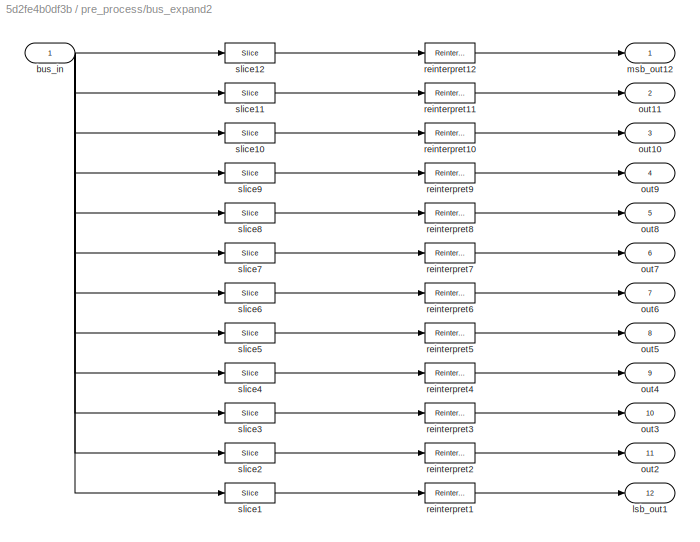
BLOCK [SubSystem] pre_process/bus_expand2
  AncestorBlock = casper_library_flow_control/bus_expand
  AttributesFormatString = 12 outputs
  FunctionWithSeparateData = off
  MaskHideContents = off
  MinAlgLoopOccurrences = off
  Opaque = off
  Ports = [1, 12]
  PropExecContextOutsideSubsystem = off
  RTWSystemCode = Auto
  RequestExecContextInheritance = off
  UserDataPersistent = on
BLOCK [Inport] pre_process/bus_expand2/bus_in
  IconDisplay = Port number
BLOCK [Outport] pre_process/bus_expand2/lsb_out1
  IconDisplay = Port number
  Port = 12
BLOCK [Outport] pre_process/bus_expand2/msb_out12
  IconDisplay = Port number
BLOCK [Outport] pre_process/bus_expand2/out10
  IconDisplay = Port number
  Port = 3
BLOCK [Outport] pre_process/bus_expand2/out11
  IconDisplay = Port number
  Port = 2
BLOCK [Outport] pre_process/bus_expand2/out2
  IconDisplay = Port number
  Port = 11
BLOCK [Outport] pre_process/bus_expand2/out3
  IconDisplay = Port number
  Port = 10
BLOCK [Outport] pre_process/bus_expand2/out4
  IconDisplay = Port number
  Port = 9
BLOCK [Outport] pre_process/bus_expand2/out5
  IconDisplay = Port number
  Port = 8
BLOCK [Outport] pre_process/bus_expand2/out6
  IconDisplay = Port number
  Port = 7
BLOCK [Outport] pre_process/bus_expand2/out7
  IconDisplay = Port number
  Port = 6
BLOCK [Outport] pre_process/bus_expand2/out8
  IconDisplay = Port number
  Port = 5
BLOCK [Outport] pre_process/bus_expand2/out9
  IconDisplay = Port number
  Port = 4
BLOCK [Reference] pre_process/bus_expand2/reinterpret1  REF=xbsIndex_r4/Reinterpret
  Ports = [1, 1]
  SourceBlock = xbsIndex_r4/Reinterpret
  SourceType = Xilinx Type Reinterpreter Block
  arith_type = Unsigned
  bin_pt = 0
  block_type = reinterpret
  force_arith_type = on
  force_bin_pt = on
  has_advanced_control = 0
  sg_icon_stat = 50,20,1,1,white,blue,0,6b04d0b0,right,,[ ],[ ]
  sggui_pos = -1,-1,-1,-1
BLOCK [Reference] pre_process/bus_expand2/reinterpret10  REF=xbsIndex_r4/Reinterpret
  Ports = [1, 1]
  SourceBlock = xbsIndex_r4/Reinterpret
  SourceType = Xilinx Type Reinterpreter Block
  arith_type = Unsigned
  bin_pt = 0
  block_type = reinterpret
  force_arith_type = on
  force_bin_pt = on
  has_advanced_control = 0
  sg_icon_stat = 50,20,1,1,white,blue,0,6b04d0b0,right,,[ ],[ ]
  sggui_pos = -1,-1,-1,-1
BLOCK [Reference] pre_process/bus_expand2/reinterpret11  REF=xbsIndex_r4/Reinterpret
  Ports = [1, 1]
  SourceBlock = xbsIndex_r4/Reinterpret
  SourceType = Xilinx Type Reinterpreter Block
  arith_type = Unsigned
  bin_pt = 0
  block_type = reinterpret
  force_arith_type = on
  force_bin_pt = on
  has_advanced_control = 0
  sg_icon_stat = 50,20,1,1,white,blue,0,6b04d0b0,right,,[ ],[ ]
  sggui_pos = -1,-1,-1,-1
BLOCK [Reference] pre_process/bus_expand2/reinterpret12  REF=xbsIndex_r4/Reinterpret
  Ports = [1, 1]
  SourceBlock = xbsIndex_r4/Reinterpret
  SourceType = Xilinx Type Reinterpreter Block
  arith_type = Unsigned
  bin_pt = 0
  block_type = reinterpret
  force_arith_type = on
  force_bin_pt = on
  has_advanced_control = 0
  sg_icon_stat = 50,20,1,1,white,blue,0,6b04d0b0,right,,[ ],[ ]
  sggui_pos = -1,-1,-1,-1
BLOCK [Reference] pre_process/bus_expand2/reinterpret2  REF=xbsIndex_r4/Reinterpret
  Ports = [1, 1]
  SourceBlock = xbsIndex_r4/Reinterpret
  SourceType = Xilinx Type Reinterpreter Block
  arith_type = Unsigned
  bin_pt = 0
  block_type = reinterpret
  force_arith_type = on
  force_bin_pt = on
  has_advanced_control = 0
  sg_icon_stat = 50,20,1,1,white,blue,0,6b04d0b0,right,,[ ],[ ]
  sggui_pos = -1,-1,-1,-1
BLOCK [Reference] pre_process/bus_expand2/reinterpret3  REF=xbsIndex_r4/Reinterpret
  Ports = [1, 1]
  SourceBlock = xbsIndex_r4/Reinterpret
  SourceType = Xilinx Type Reinterpreter Block
  arith_type = Unsigned
  bin_pt = 0
  block_type = reinterpret
  force_arith_type = on
  force_bin_pt = on
  has_advanced_control = 0
  sg_icon_stat = 50,20,1,1,white,blue,0,6b04d0b0,right,,[ ],[ ]
  sggui_pos = -1,-1,-1,-1
BLOCK [Reference] pre_process/bus_expand2/reinterpret4  REF=xbsIndex_r4/Reinterpret
  Ports = [1, 1]
  SourceBlock = xbsIndex_r4/Reinterpret
  SourceType = Xilinx Type Reinterpreter Block
  arith_type = Unsigned
  bin_pt = 0
  block_type = reinterpret
  force_arith_type = on
  force_bin_pt = on
  has_advanced_control = 0
  sg_icon_stat = 50,20,1,1,white,blue,0,6b04d0b0,right,,[ ],[ ]
  sggui_pos = -1,-1,-1,-1
BLOCK [Reference] pre_process/bus_expand2/reinterpret5  REF=xbsIndex_r4/Reinterpret
  Ports = [1, 1]
  SourceBlock = xbsIndex_r4/Reinterpret
  SourceType = Xilinx Type Reinterpreter Block
  arith_type = Unsigned
  bin_pt = 0
  block_type = reinterpret
  force_arith_type = on
  force_bin_pt = on
  has_advanced_control = 0
  sg_icon_stat = 50,20,1,1,white,blue,0,6b04d0b0,right,,[ ],[ ]
  sggui_pos = -1,-1,-1,-1
BLOCK [Reference] pre_process/bus_expand2/reinterpret6  REF=xbsIndex_r4/Reinterpret
  Ports = [1, 1]
  SourceBlock = xbsIndex_r4/Reinterpret
  SourceType = Xilinx Type Reinterpreter Block
  arith_type = Unsigned
  bin_pt = 0
  block_type = reinterpret
  force_arith_type = on
  force_bin_pt = on
  has_advanced_control = 0
  sg_icon_stat = 50,20,1,1,white,blue,0,6b04d0b0,right,,[ ],[ ]
  sggui_pos = -1,-1,-1,-1
BLOCK [Reference] pre_process/bus_expand2/reinterpret7  REF=xbsIndex_r4/Reinterpret
  Ports = [1, 1]
  SourceBlock = xbsIndex_r4/Reinterpret
  SourceType = Xilinx Type Reinterpreter Block
  arith_type = Unsigned
  bin_pt = 0
  block_type = reinterpret
  force_arith_type = on
  force_bin_pt = on
  has_advanced_control = 0
  sg_icon_stat = 50,20,1,1,white,blue,0,6b04d0b0,right,,[ ],[ ]
  sggui_pos = -1,-1,-1,-1
BLOCK [Reference] pre_process/bus_expand2/reinterpret8  REF=xbsIndex_r4/Reinterpret
  Ports = [1, 1]
  SourceBlock = xbsIndex_r4/Reinterpret
  SourceType = Xilinx Type Reinterpreter Block
  arith_type = Unsigned
  bin_pt = 0
  block_type = reinterpret
  force_arith_type = on
  force_bin_pt = on
  has_advanced_control = 0
  sg_icon_stat = 50,20,1,1,white,blue,0,6b04d0b0,right,,[ ],[ ]
  sggui_pos = -1,-1,-1,-1
BLOCK [Reference] pre_process/bus_expand2/reinterpret9  REF=xbsIndex_r4/Reinterpret
  Ports = [1, 1]
  SourceBlock = xbsIndex_r4/Reinterpret
  SourceType = Xilinx Type Reinterpreter Block
  arith_type = Unsigned
  bin_pt = 0
  block_type = reinterpret
  force_arith_type = on
  force_bin_pt = on
  has_advanced_control = 0
  sg_icon_stat = 50,20,1,1,white,blue,0,6b04d0b0,right,,[ ],[ ]
  sggui_pos = -1,-1,-1,-1
BLOCK [Reference] pre_process/bus_expand2/slice1  REF=xbsIndex_r4/Slice
  Ports = [1, 1]
  SourceBlock = xbsIndex_r4/Slice
  SourceType = Xilinx Bit Slice Extractor Block
  base0 = LSB of Input
  base1 = MSB of Input
  bit0 = 0
  bit1 = -15
  block_type = slice
  boolean_output = off
  dbl_ovrd = off
  has_advanced_control = 0
  mode = Upper Bit Location + Width
  nbits = 1
  sg_icon_stat = 50,20,1,1,white,blue,0,1fd851a7,right,,[ ],[ ]
  sggui_pos = 20,45,543,459
BLOCK [Reference] pre_process/bus_expand2/slice10  REF=xbsIndex_r4/Slice
  Ports = [1, 1]
  SourceBlock = xbsIndex_r4/Slice
  SourceType = Xilinx Bit Slice Extractor Block
  base0 = LSB of Input
  base1 = MSB of Input
  bit0 = 0
  bit1 = -6
  block_type = slice
  boolean_output = off
  dbl_ovrd = off
  has_advanced_control = 0
  mode = Upper Bit Location + Width
  nbits = 1
  sg_icon_stat = 50,20,1,1,white,blue,0,1fd851a7,right,,[ ],[ ]
  sggui_pos = -1,-1,-1,-1
BLOCK [Reference] pre_process/bus_expand2/slice11  REF=xbsIndex_r4/Slice
  Ports = [1, 1]
  SourceBlock = xbsIndex_r4/Slice
  SourceType = Xilinx Bit Slice Extractor Block
  base0 = LSB of Input
  base1 = MSB of Input
  bit0 = 0
  bit1 = -5
  block_type = slice
  boolean_output = off
  dbl_ovrd = off
  has_advanced_control = 0
  mode = Upper Bit Location + Width
  nbits = 1
  sg_icon_stat = 50,20,1,1,white,blue,0,1fd851a7,right,,[ ],[ ]
  sggui_pos = -1,-1,-1,-1
BLOCK [Reference] pre_process/bus_expand2/slice12  REF=xbsIndex_r4/Slice
  Ports = [1, 1]
  SourceBlock = xbsIndex_r4/Slice
  SourceType = Xilinx Bit Slice Extractor Block
  base0 = LSB of Input
  base1 = MSB of Input
  bit0 = 0
  bit1 = 0
  block_type = slice
  boolean_output = off
  dbl_ovrd = off
  has_advanced_control = 0
  mode = Upper Bit Location + Width
  nbits = 5
  sg_icon_stat = 50,20,1,1,white,blue,0,1fd851a7,right,,[ ],[ ]
  sggui_pos = -1,-1,-1,-1
BLOCK [Reference] pre_process/bus_expand2/slice2  REF=xbsIndex_r4/Slice
  Ports = [1, 1]
  SourceBlock = xbsIndex_r4/Slice
  SourceType = Xilinx Bit Slice Extractor Block
  base0 = LSB of Input
  base1 = MSB of Input
  bit0 = 0
  bit1 = -14
  block_type = slice
  boolean_output = off
  dbl_ovrd = off
  has_advanced_control = 0
  mode = Upper Bit Location + Width
  nbits = 1
  sg_icon_stat = 50,20,1,1,white,blue,0,1fd851a7,right,,[ ],[ ]
  sggui_pos = 20,45,543,459
BLOCK [Reference] pre_process/bus_expand2/slice3  REF=xbsIndex_r4/Slice
  Ports = [1, 1]
  SourceBlock = xbsIndex_r4/Slice
  SourceType = Xilinx Bit Slice Extractor Block
  base0 = LSB of Input
  base1 = MSB of Input
  bit0 = 0
  bit1 = -13
  block_type = slice
  boolean_output = off
  dbl_ovrd = off
  has_advanced_control = 0
  mode = Upper Bit Location + Width
  nbits = 1
  sg_icon_stat = 50,20,1,1,white,blue,0,1fd851a7,right,,[ ],[ ]
  sggui_pos = -1,-1,-1,-1
BLOCK [Reference] pre_process/bus_expand2/slice4  REF=xbsIndex_r4/Slice
  Ports = [1, 1]
  SourceBlock = xbsIndex_r4/Slice
  SourceType = Xilinx Bit Slice Extractor Block
  base0 = LSB of Input
  base1 = MSB of Input
  bit0 = 0
  bit1 = -12
  block_type = slice
  boolean_output = off
  dbl_ovrd = off
  has_advanced_control = 0
  mode = Upper Bit Location + Width
  nbits = 1
  sg_icon_stat = 50,20,1,1,white,blue,0,1fd851a7,right,,[ ],[ ]
  sggui_pos = -1,-1,-1,-1
BLOCK [Reference] pre_process/bus_expand2/slice5  REF=xbsIndex_r4/Slice
  Ports = [1, 1]
  SourceBlock = xbsIndex_r4/Slice
  SourceType = Xilinx Bit Slice Extractor Block
  base0 = LSB of Input
  base1 = MSB of Input
  bit0 = 0
  bit1 = -11
  block_type = slice
  boolean_output = off
  dbl_ovrd = off
  has_advanced_control = 0
  mode = Upper Bit Location + Width
  nbits = 1
  sg_icon_stat = 50,20,1,1,white,blue,0,1fd851a7,right,,[ ],[ ]
  sggui_pos = -1,-1,-1,-1
BLOCK [Reference] pre_process/bus_expand2/slice6  REF=xbsIndex_r4/Slice
  Ports = [1, 1]
  SourceBlock = xbsIndex_r4/Slice
  SourceType = Xilinx Bit Slice Extractor Block
  base0 = LSB of Input
  base1 = MSB of Input
  bit0 = 0
  bit1 = -10
  block_type = slice
  boolean_output = off
  dbl_ovrd = off
  has_advanced_control = 0
  mode = Upper Bit Location + Width
  nbits = 1
  sg_icon_stat = 50,20,1,1,white,blue,0,1fd851a7,right,,[ ],[ ]
  sggui_pos = -1,-1,-1,-1
BLOCK [Reference] pre_process/bus_expand2/slice7  REF=xbsIndex_r4/Slice
  Ports = [1, 1]
  SourceBlock = xbsIndex_r4/Slice
  SourceType = Xilinx Bit Slice Extractor Block
  base0 = LSB of Input
  base1 = MSB of Input
  bit0 = 0
  bit1 = -9
  block_type = slice
  boolean_output = off
  dbl_ovrd = off
  has_advanced_control = 0
  mode = Upper Bit Location + Width
  nbits = 1
  sg_icon_stat = 50,20,1,1,white,blue,0,1fd851a7,right,,[ ],[ ]
  sggui_pos = -1,-1,-1,-1
BLOCK [Reference] pre_process/bus_expand2/slice8  REF=xbsIndex_r4/Slice
  Ports = [1, 1]
  SourceBlock = xbsIndex_r4/Slice
  SourceType = Xilinx Bit Slice Extractor Block
  base0 = LSB of Input
  base1 = MSB of Input
  bit0 = 0
  bit1 = -8
  block_type = slice
  boolean_output = off
  dbl_ovrd = off
  has_advanced_control = 0
  mode = Upper Bit Location + Width
  nbits = 1
  sg_icon_stat = 50,20,1,1,white,blue,0,1fd851a7,right,,[ ],[ ]
  sggui_pos = -1,-1,-1,-1
BLOCK [Reference] pre_process/bus_expand2/slice9  REF=xbsIndex_r4/Slice
  Ports = [1, 1]
  SourceBlock = xbsIndex_r4/Slice
  SourceType = Xilinx Bit Slice Extractor Block
  base0 = LSB of Input
  base1 = MSB of Input
  bit0 = 0
  bit1 = -7
  block_type = slice
  boolean_output = off
  dbl_ovrd = off
  has_advanced_control = 0
  mode = Upper Bit Location + Width
  nbits = 1
  sg_icon_stat = 50,20,1,1,white,blue,0,1fd851a7,right,,[ ],[ ]
  sggui_pos = -1,-1,-1,-1
BLOCK [Reference] pre_process/correct_ip  REF=xbsIndex_r4/Relational
  Ports = [2, 1]
  SourceBlock = xbsIndex_r4/Relational
  SourceType = Xilinx Arithmetic Relational Operator Block
  block_type = relational
  block_version = 10.1.3
  dbl_ovrd = off
  en = off
  has_advanced_control = 0
  latency = 1
  mode = a=b
  sg_icon_stat = 40,42,2,1,white,blue,0,3618233f,right,,[ ],[ ]
  sg_list_contents = {'table'=>{'mode'=>'popup(a=b|a!=b|a<b|a>b|a<=b|a>=b)','userSelections'=>{'mode'=>'a=b'}}}
  sg_mask_display = fprintf('','COMMENT: begin icon graphics');\npatch([0 40 40 0 0 ],[0 0 42 42 0 ],[0.77 0.82 0.91 ]);\nplot([0 40 40 0 0 ],[0 0 42 42 0 ]);\npatch([8.875 16.1 21.1 26.1 31.1 21.1 13.875 8.875 ],[26.55 26.55 31.55 26.55 31.55 31.55 31.55 26.55 ],[1 1 1 ]);\npatch([13.875 21.1 16.1 8.875 13.875 ],[21.55 21.55 26.55 26.55 21.55 ],[0.931 0.946 0.973 ]);\npatch([8.875 16.1 21.1 13.875 8.875 ],[16.55 16.55 21...<+498ch>
  sggui_pos = 1223,201,451,210
  xl_area = [0, 0, 0, 0, 0, 0, 0]
  xl_use_area = off
BLOCK [Reference] pre_process/correct_xengine  REF=xbsIndex_r4/Relational
  Ports = [2, 1]
  SourceBlock = xbsIndex_r4/Relational
  SourceType = Xilinx Arithmetic Relational Operator Block
  block_type = relational
  block_version = 10.1.3
  dbl_ovrd = off
  en = off
  has_advanced_control = 0
  latency = 1
  mode = a=b
  sg_icon_stat = 40,42,2,1,white,blue,0,3618233f,right,,[ ],[ ]
  sg_list_contents = {'table'=>{'mode'=>'popup(a=b|a!=b|a<b|a>b|a<=b|a>=b)','userSelections'=>{'mode'=>'a=b'}}}
  sg_mask_display = fprintf('','COMMENT: begin icon graphics');\npatch([0 40 40 0 0 ],[0 0 42 42 0 ],[0.77 0.82 0.91 ]);\nplot([0 40 40 0 0 ],[0 0 42 42 0 ]);\npatch([8.875 16.1 21.1 26.1 31.1 21.1 13.875 8.875 ],[26.55 26.55 31.55 26.55 31.55 31.55 31.55 26.55 ],[1 1 1 ]);\npatch([13.875 21.1 16.1 8.875 13.875 ],[21.55 21.55 26.55 26.55 21.55 ],[0.931 0.946 0.973 ]);\npatch([8.875 16.1 21.1 13.875 8.875 ],[16.55 16.55 21...<+498ch>
  sggui_pos = 1223,201,451,210
  xl_area = [0, 0, 0, 0, 0, 0, 0]
  xl_use_area = off
BLOCK [Inport] pre_process/data_in
  IconDisplay = Port number
BLOCK [Outport] pre_process/data_out
  IconDisplay = Port number
BLOCK [Reference] pre_process/dest_ip  REF=xbsIndex_r4/Slice
  Ports = [1, 1]
  SourceBlock = xbsIndex_r4/Slice
  SourceType = Xilinx Bit Slice Extractor Block
  base0 = LSB of Input
  base1 = MSB of Input
  bit0 = freq_bits-xeng_bits
  bit1 = 0
  block_type = slice
  block_version = 10.1.3
  boolean_output = off
  dbl_ovrd = off
  has_advanced_control = 0
  mode = Upper Bit Location + Width
  nbits = xeng_bits-share_bits
  sg_icon_stat = 30,16,1,1,white,blue,0,1fd851a7,right,,[ ],[ ]
  sggui_pos = 636,57,601,558
BLOCK [Reference] pre_process/dest_x  REF=xbsIndex_r4/Slice
  Ports = [1, 1]
  SourceBlock = xbsIndex_r4/Slice
  SourceType = Xilinx Bit Slice Extractor Block
  base0 = LSB of Input
  base1 = MSB of Input
  bit0 = freq_bits-xeng_bits
  bit1 = 0
  block_type = slice
  block_version = 10.1.3
  boolean_output = off
  dbl_ovrd = off
  has_advanced_control = 0
  mode = Upper Bit Location + Width
  nbits = xeng_bits
  sg_icon_stat = 30,16,1,1,white,blue,0,1fd851a7,right,,[ ],[ ]
  sggui_pos = 231,546,601,558
BLOCK [Reference] pre_process/edge_detect  REF=casper_library_misc/edge_detect  (lib defined in mdl_357510c33b49, mdl_57b5f564ae26, +4 more)
  AttributesFormatString = rising edges\nactive high
  Ports = [1, 1]
  SourceBlock = casper_library_misc/edge_detect
  SourceType = edge_detect
  UserDataPersistent = on
  edge = Rising
  polarity = Active High
  x_in = [0 0.08 0.08 0.16 0.16 0.24 0.24 0.32 0.32 0.4]
  x_out = [0.6 0.68 0.68 0.76 0.76 0.84 0.84 0.92 0.92 1]
  y_in = [-1 -1  1  1  1  1  1  1  1  1]
  y_out = [-1 -1  1  1 -1 -1 -1 -1 -1 -1]
BLOCK [Inport] pre_process/eof_in
  IconDisplay = Port number
  Port = 3
BLOCK [Outport] pre_process/eof_out
  IconDisplay = Port number
  Port = 3
BLOCK [Outport] pre_process/err_bundle
  IconDisplay = Port number
  Port = 11
BLOCK [Outport] pre_process/feng_id
  IconDisplay = Port number
  Port = 5
BLOCK [Outport] pre_process/flags_out
  IconDisplay = Port number
  Port = 10
BLOCK [Reference] pre_process/freq  REF=xbsIndex_r4/Slice
  Ports = [1, 1]
  SourceBlock = xbsIndex_r4/Slice
  SourceType = Xilinx Bit Slice Extractor Block
  base0 = LSB of Input
  base1 = LSB of Input
  bit0 = 0
  bit1 = 0
  block_type = slice
  block_version = 10.1.3
  boolean_output = off
  dbl_ovrd = off
  has_advanced_control = 0
  mode = Lower Bit Location + Width
  nbits = freq_bits
  sg_icon_stat = 30,16,1,1,white,blue,0,1fd851a7,right,,[ ],[ ]
  sggui_pos = 694,95,601,558
BLOCK [Outport] pre_process/freq_out
  IconDisplay = Port number
  Port = 6
BLOCK [Outport] pre_process/freq_out_full
  IconDisplay = Port number
  Port = 7
BLOCK [Reference] pre_process/freq_xeng  REF=xbsIndex_r4/Slice
  Ports = [1, 1]
  SourceBlock = xbsIndex_r4/Slice
  SourceType = Xilinx Bit Slice Extractor Block
  base0 = LSB of Input
  base1 = LSB of Input
  bit0 = 0
  bit1 = 0
  block_type = slice
  block_version = 10.1.3
  boolean_output = off
  dbl_ovrd = off
  has_advanced_control = 0
  mode = Lower Bit Location + Width
  nbits = freq_bits-xeng_bits
  sg_icon_stat = 30,16,1,1,white,blue,0,1fd851a7,right,,[ ],[ ]
  sggui_pos = 694,95,601,558
BLOCK [Outport] pre_process/ip_dest_err
  IconDisplay = Port number
  Port = 9
BLOCK [Scope] pre_process/pre_proc
  DataFormat = StructureWithTime
  Floating = off
  LimitDataPoints = off
  NumInputPorts = 6
  Ports = [6]
  SampleTime = 0
  SaveName = ScopeData10
  ShowLegends = off
  TimeRange = 1
  YMax = 1182220000000000~1~157.5~4.2~1~1
  YMin = 1069620000000000~0~142.5~3.8~-1~0
  ZoomMode = xonly
BLOCK [Inport] pre_process/spead_err
  IconDisplay = Port number
  Port = 4
BLOCK [Outport] pre_process/spead_err_out
  IconDisplay = Port number
  Port = 8
BLOCK [Inport] pre_process/spead_fengid
  IconDisplay = Port number
  Port = 6
BLOCK [Inport] pre_process/spead_flags
  IconDisplay = Port number
  Port = 7
BLOCK [Inport] pre_process/spead_freqid
  IconDisplay = Port number
  Port = 8
BLOCK [Inport] pre_process/spead_time48
  IconDisplay = Port number
  Port = 5
BLOCK [Outport] pre_process/timestamp
  IconDisplay = Port number
  Port = 4
BLOCK [Outport] pre_process/valid
  IconDisplay = Port number
  Port = 2
BLOCK [Inport] pre_process/valid_in
  IconDisplay = Port number
  Port = 2
BLOCK [Reference] pre_process/x_ip  REF=xbsIndex_r4/Slice
  Ports = [1, 1]
  SourceBlock = xbsIndex_r4/Slice
  SourceType = Xilinx Bit Slice Extractor Block
  base0 = LSB of Input
  base1 = MSB of Input
  bit0 = freq_bits-xeng_bits
  bit1 = 0
  block_type = slice
  block_version = 10.1.3
  boolean_output = off
  dbl_ovrd = off
  has_advanced_control = 0
  mode = Upper Bit Location + Width
  nbits = xeng_bits-share_bits
  sg_icon_stat = 30,16,1,1,white,blue,0,1fd851a7,right,,[ ],[ ]
  sggui_pos = 107,54,601,558
BLOCK [Reference] pre_process/xeng  REF=xbsIndex_r4/Slice
  Ports = [1, 1]
  SourceBlock = xbsIndex_r4/Slice
  SourceType = Xilinx Bit Slice Extractor Block
  base0 = LSB of Input
  base1 = MSB of Input
  bit0 = 0
  bit1 = 0
  block_type = slice
  block_version = 10.1.3
  boolean_output = off
  dbl_ovrd = off
  has_advanced_control = 0
  mode = Lower Bit Location + Width
  nbits = xeng_bits
  sg_icon_stat = 30,16,1,1,white,blue,0,1fd851a7,right,,[ ],[ ]
  sggui_pos = 756,44,601,558
BLOCK [Inport] pre_process/xeng_id
  IconDisplay = Port number
  Port = 9
ANNOTATION (root): HDRs are: 1. Timestamp, 2. feng_id, 3. feng_satus, 4. frequency
ANNOTATION (root): The time out of the pre_process increments by ONE per freq per fengine.
ANNOTATION pre_process: HDRs are: 1. Timestamp, 2. feng_id, 3. feng_satus, 4. frequency
ANNOTATION pre_process: application 32-47 reserved 24-31 fengine 8-23 digitiser 0-7
ANNOTATION pre_process: check that the frequency has gone to the correct ip
ANNOTATION pre_process: slice off the bits of timestamp that matter
LINE Concat6:1 -> Goto2:1
LINE Constant10:1 -> Concat6:2
LINE Constant1:1 -> Goto11:1
LINE Constant2:1 -> Goto37:1
LINE Constant3:1 -> Goto38:1
LINE Constant4:1 -> Goto39:1
LINE Constant5:1 -> Goto41:1
LINE Constant6:1 -> Goto52:1
LINE Constant7:1 -> Goto55:1
LINE Constant8:1 -> Goto60:1
LINE Constant9:1 -> Goto66:1
LINE Delay13:1 -> pre_process:1
LINE Delay14:1 -> pre_process:2
LINE Delay17:1 -> pre_process:3
LINE Delay24:1 -> pre_process:4
LINE Delay25:1 -> pre_process:5
LINE Delay26:1 -> pre_process:6
LINE Delay27:1 -> pre_process:7
LINE Delay28:1 -> pre_process:8
LINE Delay29:1 -> pre_process:9
LINE From11:1 -> Delay14:1
LINE From13:1 -> Delay17:1
LINE From15:1 -> Delay24:1
LINE From16:1 -> Delay25:1
LINE From17:1 -> Delay27:1
LINE From18:1 -> Delay28:1
LINE From21:1 -> Delay26:1
LINE From6:1 -> Slice11:1
LINE From7:1 -> Delay29:1
LINE From9:1 -> Delay13:1
LINE Gateway Out1:1 -> Scope:2
LINE Gateway Out2:1 -> Scope:3
LINE Gateway Out3:1 -> Scope:4
LINE Gateway Out4:1 -> Scope:5
LINE Gateway Out5:1 -> Scope:6
LINE Gateway Out6:1 -> Scope:7
LINE Gateway Out7:1 -> Scope:8
LINE Gateway Out8:1 -> Scope:9
LINE Gateway Out:1 -> Scope:1
LINE Slice11:1 -> Concat6:1
LINE pre_process/Concat1:1 -> pre_process/err_bundle:1
LINE pre_process/Concat:1 -> pre_process/flags_out:1
LINE pre_process/Constant:1 -> pre_process/Goto_pre_feng_chk_err:1
LINE pre_process/Delay10:1 -> pre_process/feng_id:1
LINE pre_process/Delay12:1 -> pre_process/freq_out_full:1
LINE pre_process/Delay13:1 -> pre_process/bus_expand:1
LINE pre_process/Delay1:1 -> pre_process/Gateway Out11:1
LINE pre_process/Delay2:1 -> pre_process/Gateway Out12:1
NET pre_process/Delay3:1 -> pre_process/Gateway Out10:1, pre_process/Logical1:1, pre_process/Logical3:1
LINE pre_process/Delay4:1 -> pre_process/freq_out:1
LINE pre_process/Delay5:1 -> pre_process/data_out:1
LINE pre_process/Delay6:1 -> pre_process/Gateway Out13:1
LINE pre_process/Delay7:1 -> pre_process/eof_out:1
LINE pre_process/Delay8:1 -> pre_process/spead_err_out:1
LINE pre_process/Delay9:1 -> pre_process/timestamp:1
LINE pre_process/From_pre_adc_err:1 -> pre_process/Concat1:5
LINE pre_process/From_pre_feng_chk_err:1 -> pre_process/Concat1:1
LINE pre_process/From_pre_feng_qdr_err:1 -> pre_process/Concat1:2
LINE pre_process/From_pre_feng_rx_err:1 -> pre_process/Concat1:4
LINE pre_process/From_pre_fft_err:1 -> pre_process/Concat1:3
LINE pre_process/From_pre_ndiode_en:1 -> pre_process/Concat1:6
LINE pre_process/Gateway Out10:1 -> pre_process/pre_proc:2
LINE pre_process/Gateway Out11:1 -> pre_process/pre_proc:1
LINE pre_process/Gateway Out12:1 -> pre_process/pre_proc:3
LINE pre_process/Gateway Out13:1 -> pre_process/pre_proc:4
LINE pre_process/Gateway Out1:1 -> pre_process/pre_proc:6
LINE pre_process/Gateway Out8:1 -> pre_process/pre_proc:5
LINE pre_process/Inverter:1 -> pre_process/Logical1:2
LINE pre_process/Logical1:1 -> pre_process/edge_detect:1
LINE pre_process/Logical2:1 -> pre_process/Slice1:1
NET pre_process/Logical3:1 -> pre_process/Gateway Out8:1, pre_process/valid:1
LINE pre_process/Logical4:1 -> pre_process/Slice4:1
LINE pre_process/Logical5:1 -> pre_process/Slice6:1
LINE pre_process/Logical6:1 -> pre_process/Slice7:1
LINE pre_process/Logical:1 -> pre_process/Slice5:1
LINE pre_process/Slice1:1 -> pre_process/Goto_pre_feng_qdr_err:1
LINE pre_process/Slice4:1 -> pre_process/Goto_pre_fft_err:1
LINE pre_process/Slice5:1 -> pre_process/Goto_pre_feng_rx_err:1
LINE pre_process/Slice6:1 -> pre_process/Goto_pre_adc_err:1
LINE pre_process/Slice7:1 -> pre_process/Goto_pre_ndiode_en:1
LINE pre_process/Slice9:1 -> pre_process/Delay10:1
LINE pre_process/Slice:1 -> pre_process/Delay9:1
LINE pre_process/bus_expand1:1 -> pre_process/Terminator2:1
NET pre_process/bus_expand1:2 -> pre_process/Concat:12, pre_process/Logical5:1
NET pre_process/bus_expand1:3 -> pre_process/Concat:13, pre_process/Logical5:2
NET pre_process/bus_expand1:4 -> pre_process/Concat:14, pre_process/Logical6:1
NET pre_process/bus_expand1:5 -> pre_process/Concat:15, pre_process/Logical6:2
LINE pre_process/bus_expand2:1 -> pre_process/Terminator3:1
NET pre_process/bus_expand2:10 -> pre_process/Concat:9, pre_process/Logical:5
NET pre_process/bus_expand2:11 -> pre_process/Concat:10, pre_process/Logical:6
NET pre_process/bus_expand2:12 -> pre_process/Concat:11, pre_process/Logical:7
NET pre_process/bus_expand2:2 -> pre_process/Concat:1, pre_process/Logical2:1
NET pre_process/bus_expand2:3 -> pre_process/Concat:2, pre_process/Logical2:2
NET pre_process/bus_expand2:4 -> pre_process/Concat:3, pre_process/Logical4:1
NET pre_process/bus_expand2:5 -> pre_process/Concat:4, pre_process/Logical4:2
NET pre_process/bus_expand2:6 -> pre_process/Concat:5, pre_process/Logical:1
NET pre_process/bus_expand2:7 -> pre_process/Concat:6, pre_process/Logical:2
NET pre_process/bus_expand2:8 -> pre_process/Concat:7, pre_process/Logical:3
NET pre_process/bus_expand2:9 -> pre_process/Concat:8, pre_process/Logical:4
LINE pre_process/bus_expand:1 -> pre_process/Terminator1:1
LINE pre_process/bus_expand:2 -> pre_process/Terminator:1
LINE pre_process/bus_expand:3 -> pre_process/bus_expand2:1
LINE pre_process/bus_expand:4 -> pre_process/bus_expand1:1
LINE pre_process/correct_ip:1 -> pre_process/Inverter:1
LINE pre_process/correct_xengine:1 -> pre_process/Logical3:2
LINE pre_process/data_in:1 -> pre_process/Delay5:1
LINE pre_process/dest_ip:1 -> pre_process/correct_ip:1
NET pre_process/dest_x:1 -> pre_process/Delay6:1, pre_process/correct_xengine:1, pre_process/dest_ip:1
NET pre_process/edge_detect:1 -> pre_process/Gateway Out1:1, pre_process/ip_dest_err:1
LINE pre_process/eof_in:1 -> pre_process/Delay7:1
NET pre_process/freq:1 -> pre_process/Delay12:1, pre_process/Delay2:1, pre_process/dest_x:1, pre_process/freq_xeng:1
LINE pre_process/freq_xeng:1 -> pre_process/Delay4:1
LINE pre_process/spead_err:1 -> pre_process/Delay8:1
LINE pre_process/spead_fengid:1 -> pre_process/Slice9:1
LINE pre_process/spead_flags:1 -> pre_process/Delay13:1
LINE pre_process/spead_freqid:1 -> pre_process/freq:1
LINE pre_process/spead_time48:1 -> pre_process/Slice:1
NET pre_process/valid_in:1 -> pre_process/Delay13:2, pre_process/Delay3:1
LINE pre_process/x_ip:1 -> pre_process/correct_ip:2
NET pre_process/xeng:1 -> pre_process/Delay1:1, pre_process/correct_xengine:2, pre_process/x_ip:1
LINE pre_process/xeng_id:1 -> pre_process/xeng:1
LINE pre_process:10 -> Gateway Out7:1
LINE pre_process:11 -> Gateway Out8:1
LINE pre_process:2 -> Gateway Out:1
LINE pre_process:3 -> Gateway Out1:1
LINE pre_process:5 -> Gateway Out2:1
LINE pre_process:6 -> Gateway Out3:1
LINE pre_process:7 -> Gateway Out4:1
LINE pre_process:8 -> Gateway Out5:1
LINE pre_process:9 -> Gateway Out6:1
note: NET lines group one-source signal fan-out (src -> all destinations, sorted); 1:1 wires keep LINE
